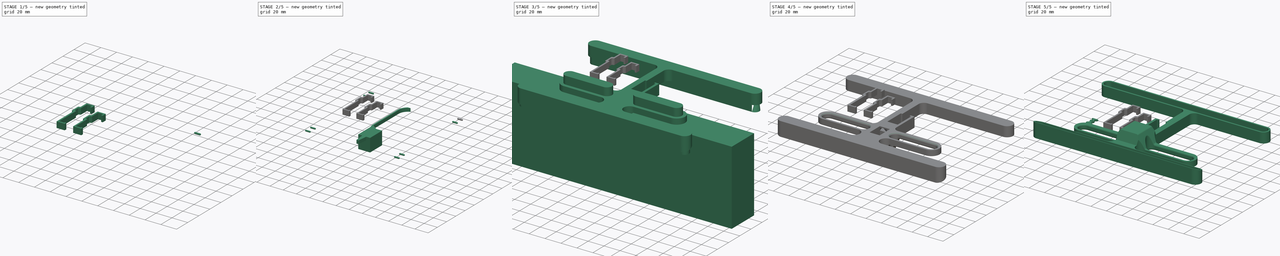
[diagram: build sequence overview — one tinted view per stage of 5, left to right]
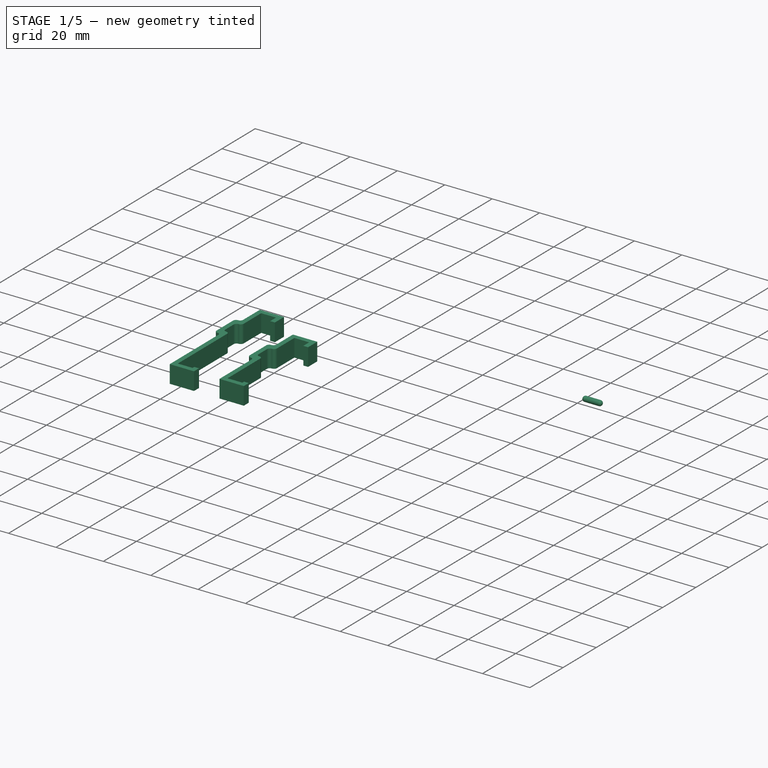
[diagram: stage 1 of 5 — iso view after this stage's code; geometry added in this stage tinted green]
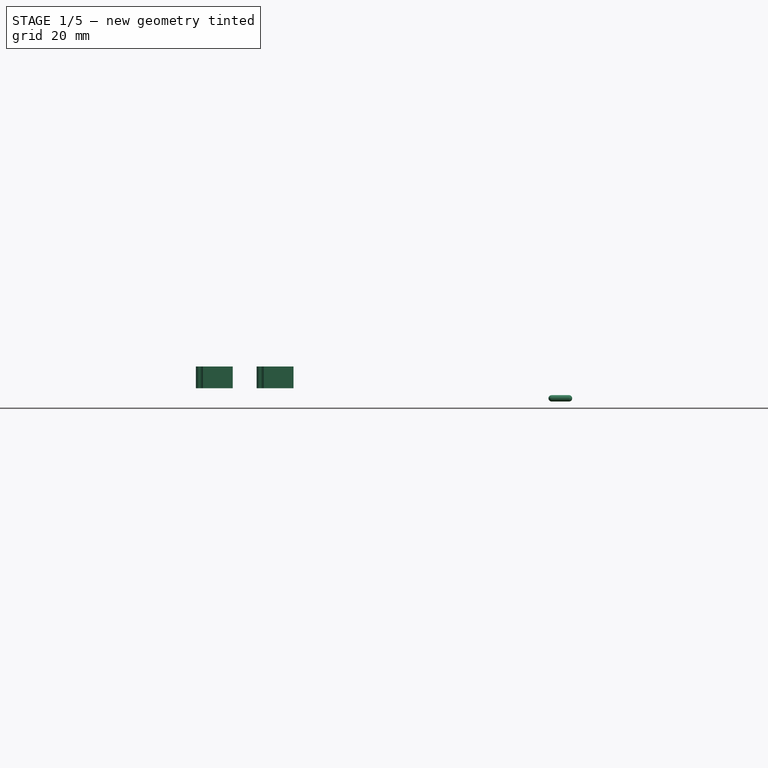
[diagram: stage 1 of 5 — front view after this stage's code; geometry added in this stage tinted green]
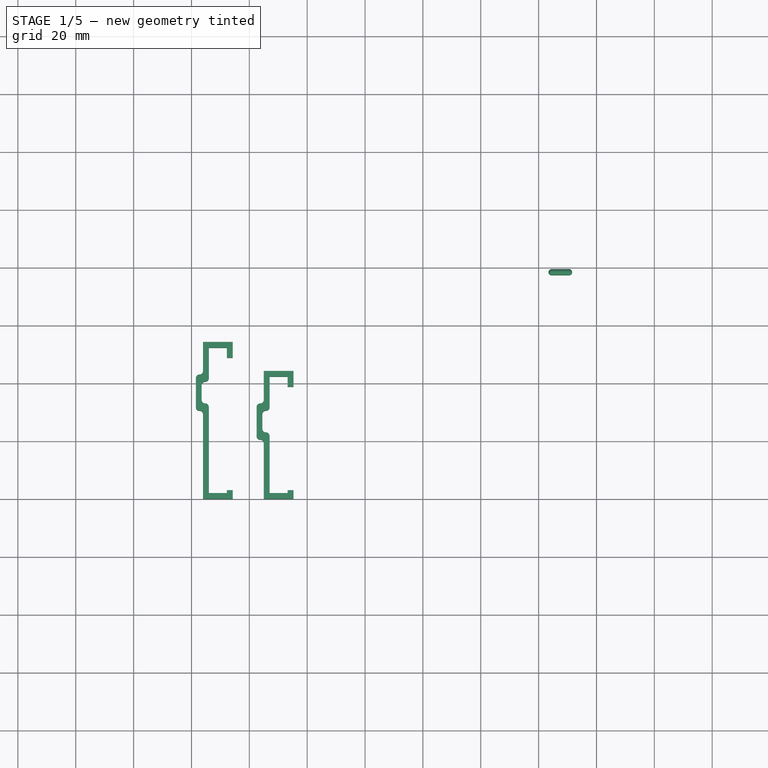
[diagram: stage 1 of 5 — top view after this stage's code; geometry added in this stage tinted green]
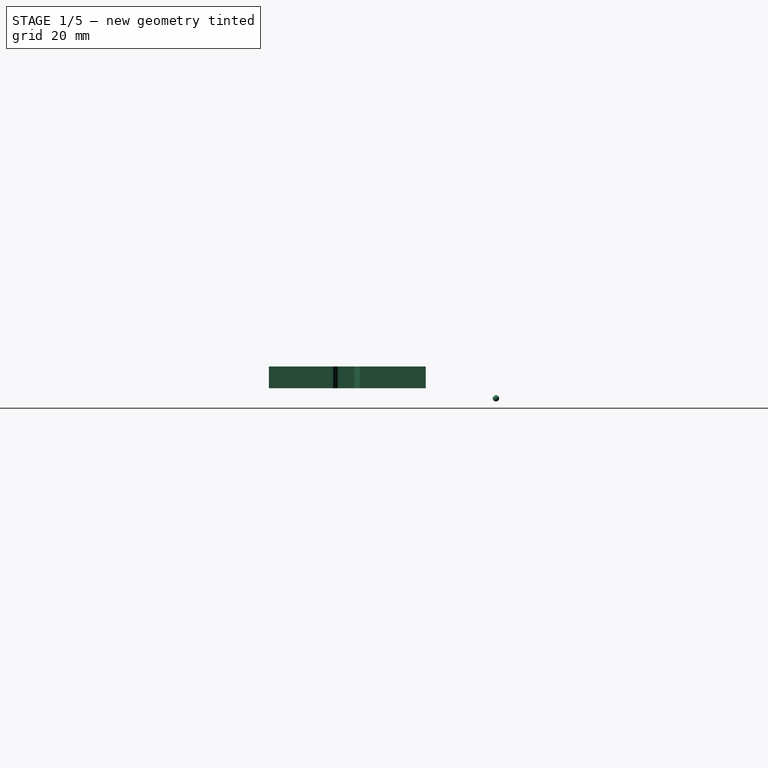
[diagram: stage 1 of 5 — right view after this stage's code; geometry added in this stage tinted green]
FCSTD DOCUMENT  (FreeCAD 0.19R)
Label: prusalight
License: All rights reserved
LicenseURL: http://en.wikipedia.org/wiki/All_rights_reserved
objects: Sketcher::SketchObject×14, Part::Extrusion×13, Part::FeaturePython×9, Part::Cut×7, Part::MultiFuse×6, Part::Sphere×4, Part::Cylinder×2, Part::MultiCommon×1, PartDesign::Body×1, Part::Fillet×1, App::DocumentObjectGroup×1
note: 58 computed .brp shape members not serialized (recipe doc carries the construction recipe); baked Part::Feature solids carry a one-line shape summary decoded from their .brp

FEATURE [Sketcher::SketchObject] Sketch  label="TopClampSketch"
  MapMode = 5
  Support = -> [XY_Plane]
  sketch-geometry (25):
    g0: LineSegment StartX=10.25 StartY=38.75 StartZ=0 EndX=10.25 EndY=44.25 EndZ=0
    g1: LineSegment StartX=10.25 StartY=44.25 StartZ=0 EndX=0 EndY=44.25 EndZ=0
    g2: LineSegment StartX=0 StartY=0 StartZ=0 EndX=10.25 EndY=0 EndZ=0
    g3: LineSegment StartX=10.25 StartY=0 StartZ=0 EndX=10.25 EndY=3 EndZ=0
    g4: LineSegment StartX=10.25 StartY=3 StartZ=0 EndX=8.25 EndY=3 EndZ=0
    g5: LineSegment StartX=8.25 StartY=3 StartZ=0 EndX=8.25 EndY=2 EndZ=0
    g6: LineSegment StartX=8.25 StartY=2 StartZ=0 EndX=2 EndY=2 EndZ=0
    g7: LineSegment StartX=2 StartY=42.25 StartZ=0 EndX=8.25 EndY=42.25 EndZ=0
    g8: LineSegment StartX=8.25 StartY=42.25 StartZ=0 EndX=8.25 EndY=38.75 EndZ=0
    g9: LineSegment StartX=8.25 StartY=38.75 StartZ=0 EndX=10.25 EndY=38.75 EndZ=0
    g10: GeomPoint X=0 Y=0 Z=0
    g11: LineSegment StartX=0 StartY=44.25 StartZ=0 EndX=0 EndY=34.25 EndZ=0
    g12: LineSegment StartX=-2.5 StartY=31.75 StartZ=0 EndX=-2.5 EndY=21.75 EndZ=0
    g13: LineSegment StartX=-0.5 StartY=29.25 StartZ=0 EndX=-0.5 EndY=24.25 EndZ=0
    g14: LineSegment StartX=0 StartY=19.25 StartZ=0 EndX=0 EndY=0 EndZ=0
    g15: LineSegment StartX=2 StartY=21.75 StartZ=0 EndX=2 EndY=2 EndZ=0
    g16: LineSegment StartX=2 StartY=42.25 StartZ=0 EndX=2 EndY=31.75 EndZ=0
    g17: ArcOfCircle CenterX=-1.25 CenterY=34.25 CenterZ=0 NormalX=0 NormalY=0 NormalZ=1 AngleXU=0 Radius=1.25 StartAngle=4.71239 EndAngle=6.28319
    g18: ArcOfCircle CenterX=-1.25 CenterY=31.75 CenterZ=0 NormalX=0 NormalY=0 NormalZ=1 AngleXU=0 Radius=1.25 StartAngle=1.5708 EndAngle=3.14159
    g19: ArcOfCircle CenterX=0.75 CenterY=29.25 CenterZ=0 NormalX=0 NormalY=0 NormalZ=1 AngleXU=0 Radius=1.25 StartAngle=1.5708 EndAngle=3.14159
    g20: ArcOfCircle CenterX=0.75 CenterY=31.75 CenterZ=0 NormalX=0 NormalY=0 NormalZ=1 AngleXU=0 Radius=1.25 StartAngle=4.71239 EndAngle=6.28319
    g21: ArcOfCircle CenterX=-1.25 CenterY=19.25 CenterZ=0 NormalX=0 NormalY=0 NormalZ=1 AngleXU=0 Radius=1.25 StartAngle=0 EndAngle=1.5708
    g22: ArcOfCircle CenterX=-1.25 CenterY=21.75 CenterZ=0 NormalX=0 NormalY=0 NormalZ=1 AngleXU=0 Radius=1.25 StartAngle=3.14159 EndAngle=4.71239
    g23: ArcOfCircle CenterX=0.75 CenterY=21.75 CenterZ=0 NormalX=0 NormalY=0 NormalZ=1 AngleXU=0 Radius=1.25 StartAngle=0 EndAngle=1.5708
    g24: ArcOfCircle CenterX=0.75 CenterY=24.25 CenterZ=0 NormalX=0 NormalY=0 NormalZ=1 AngleXU=0 Radius=1.25 StartAngle=3.14159 EndAngle=4.71239
  constraints (80):
    c: Vertical(g0)
    c: Coincident(g0,g1)
    c: Horizontal(g1)
    c: Horizontal(g2)
    c: Coincident(g2,g3)
    c: Vertical(g3)
    c: Coincident(g3,g4)
    c: Coincident(g4,g5)
    c: Vertical(g5)
    c: Coincident(g5,g6)
    c: Horizontal(g6)
    c: Horizontal(g7)
    c: Coincident(g7,g8)
    c: Vertical(g8)
    c: Coincident(g8,g9)
    c: Coincident(g9,g0)
    c: Vertical(g4,g8)
    c: DistanceY(g6,g7) = 40.25
    c: DistanceY(g7,g0) = 2
    c: Horizontal(g9)
    c: DistanceX(g9,g9) = 2
    c: Horizontal(g4)
    c: Vertical(g3,g0)
    c: DistanceY(g2,g5) = 2
    c: DistanceX(g1,g7) = 2
    c: DistanceY(g8,g8) = 3.5
    c: DistanceY(g5,g5) = 1
    c: DistanceX(g6,g6) = 6.25
    c: Coincident(g10,g-1)
    c: Vertical(g7,g6)
    c: Vertical(g2,g1)
    c: Coincident(g2,g10)
    c: Vertical(g11)
    c: Vertical(g12)
    c: Vertical(g13)
    c: Vertical(g14)
    c: Vertical(g15)
    c: Vertical(g16)
    c: Coincident(g18,g17)
    c: Vertical(g17,g17)
    c: Horizontal(g17,g17)
    c: Horizontal(g18,g18)
    c: Equal(g18,g17)
    c: Coincident(g17,g11)
    c: Coincident(g18,g12)
    c: Radius(g18) = 1.25
    c: Vertical(g18,g17)
    c: Coincident(g20,g19)
    c: Coincident(g19,g13)
    c: Horizontal(g13,g19)
    c: Vertical(g19,g19)
    c: Vertical(g19,g20)
    c: Horizontal(g20,g20)
    c: Coincident(g16,g20)
    c: DistanceY(g13,g13) = 5
    c: Equal(g20,g19)
    c: Equal(g19,g17)
    c: Coincident(g16,g7)
    c: Coincident(g11,g1)
    c: Horizontal(g20,g18)
    c: Coincident(g15,g6)
    c: Coincident(g14,g2)
    c: Coincident(g21,g14)
    c: Coincident(g22,g21)
    c: Coincident(g23,g15)
    c: Coincident(g24,g23)
    c: Horizontal(g23,g15)
    c: Horizontal(g24,g24)
    c: Vertical(g24,g23)
    c: Vertical(g23,g23)
    c: Horizontal(g14,g21)
    c: Horizontal(g22,g22)
    c: Vertical(g21,g21)
    c: Vertical(g22,g22)
    c: Coincident(g12,g22)
    c: Coincident(g24,g13)
    c: Equal(g22,g24)
    c: Equal(g24,g21)
    c: DistanceY(g11,g1) = 10
    c: Horizontal(g12,g15)
FEATURE [Part::Extrusion] Extrude  label="TopClamp"
  Base = -> Sketch
  Dir = (0,0,1)
  DirMode = 2
  FaceMakerClass = Part::FaceMakerBullseye
  LengthFwd = 7.5
  LengthRev = 0
  Solid = true
  Symmetric = false
FEATURE [Sketcher::SketchObject] Sketch001  label="SideClampSketch"
  MapMode = 5
  Support = -> [XY_Plane]
  expr: Constraints[77] = Sketch.Constraints[78]
  expr: Constraints[44] = Sketch.Constraints[45]
  expr: Constraints[26] = Sketch.Constraints[27]
  expr: Constraints[22] = Sketch.Constraints[23]
  expr: Constraints[25] = Sketch.Constraints[26]
  expr: Constraints[24] = Sketch.Constraints[25]
  expr: Constraints[23] = Sketch.Constraints[24]
  expr: Constraints[17] = Sketch.Constraints[18]
  expr: Constraints[19] = Sketch.Constraints[20]
  expr: Constraints[53] = Sketch.Constraints[54]
  sketch-geometry (25):
    g0: LineSegment StartX=10.25 StartY=48.75 StartZ=0 EndX=10.25 EndY=54.25 EndZ=0
    g1: LineSegment StartX=10.25 StartY=54.25 StartZ=0 EndX=0 EndY=54.25 EndZ=0
    g2: LineSegment StartX=0 StartY=0 StartZ=0 EndX=10.25 EndY=0 EndZ=0
    g3: LineSegment StartX=10.25 StartY=0 StartZ=0 EndX=10.25 EndY=3 EndZ=0
    g4: LineSegment StartX=10.25 StartY=3 StartZ=0 EndX=8.25 EndY=3 EndZ=0
    g5: LineSegment StartX=8.25 StartY=3 StartZ=0 EndX=8.25 EndY=2 EndZ=0
    g6: LineSegment StartX=8.25 StartY=2 StartZ=0 EndX=2 EndY=2 EndZ=0
    g7: LineSegment StartX=2 StartY=52.25 StartZ=0 EndX=8.25 EndY=52.25 EndZ=0
    g8: LineSegment StartX=8.25 StartY=52.25 StartZ=0 EndX=8.25 EndY=48.75 EndZ=0
    g9: LineSegment StartX=8.25 StartY=48.75 StartZ=0 EndX=10.25 EndY=48.75 EndZ=0
    g10: GeomPoint X=0 Y=0 Z=0
    g11: LineSegment StartX=0 StartY=54.25 StartZ=0 EndX=0 EndY=44.25 EndZ=0
    g12: LineSegment StartX=-2.5 StartY=41.75 StartZ=0 EndX=-2.5 EndY=31.75 EndZ=0
    g13: LineSegment StartX=-0.5 StartY=39.25 StartZ=0 EndX=-0.5 EndY=34.25 EndZ=0
    g14: LineSegment StartX=0 StartY=29.25 StartZ=0 EndX=0 EndY=0 EndZ=0
    g15: LineSegment StartX=2 StartY=31.75 StartZ=0 EndX=2 EndY=2 EndZ=0
    g16: LineSegment StartX=2 StartY=52.25 StartZ=0 EndX=2 EndY=41.75 EndZ=0
    g17: ArcOfCircle CenterX=-1.25 CenterY=44.25 CenterZ=0 NormalX=0 NormalY=0 NormalZ=1 AngleXU=0 Radius=1.25 StartAngle=4.71239 EndAngle=6.28319
    g18: ArcOfCircle CenterX=-1.25 CenterY=41.75 CenterZ=0 NormalX=0 NormalY=0 NormalZ=1 AngleXU=0 Radius=1.25 StartAngle=1.5708 EndAngle=3.14159
    g19: ArcOfCircle CenterX=0.75 CenterY=39.25 CenterZ=0 NormalX=0 NormalY=0 NormalZ=1 AngleXU=0 Radius=1.25 StartAngle=1.5708 EndAngle=3.14159
    g20: ArcOfCircle CenterX=0.75 CenterY=41.75 CenterZ=0 NormalX=0 NormalY=0 NormalZ=1 AngleXU=0 Radius=1.25 StartAngle=4.71239 EndAngle=6.28319
    g21: ArcOfCircle CenterX=-1.25 CenterY=29.25 CenterZ=0 NormalX=0 NormalY=0 NormalZ=1 AngleXU=0 Radius=1.25 StartAngle=0 EndAngle=1.5708
    g22: ArcOfCircle CenterX=-1.25 CenterY=31.75 CenterZ=0 NormalX=0 NormalY=0 NormalZ=1 AngleXU=0 Radius=1.25 StartAngle=3.14159 EndAngle=4.71239
    g23: ArcOfCircle CenterX=0.75 CenterY=31.75 CenterZ=0 NormalX=0 NormalY=0 NormalZ=1 AngleXU=0 Radius=1.25 StartAngle=0 EndAngle=1.5708
    g24: ArcOfCircle CenterX=0.75 CenterY=34.25 CenterZ=0 NormalX=0 NormalY=0 NormalZ=1 AngleXU=0 Radius=1.25 StartAngle=3.14159 EndAngle=4.71239
  constraints (80):
    c: Vertical(g0)
    c: Coincident(g0,g1)
    c: Horizontal(g1)
    c: Horizontal(g2)
    c: Coincident(g2,g3)
    c: Vertical(g3)
    c: Coincident(g3,g4)
    c: Coincident(g4,g5)
    c: Vertical(g5)
    c: Coincident(g5,g6)
    c: Horizontal(g6)
    c: Horizontal(g7)
    c: Coincident(g7,g8)
    c: Vertical(g8)
    c: Coincident(g8,g9)
    c: Coincident(g9,g0)
    c: Vertical(g4,g8)
    c: DistanceY(g7,g0) = 2
    c: Horizontal(g9)
    c: DistanceX(g9,g9) = 2
    c: Horizontal(g4)
    c: Vertical(g3,g0)
    c: DistanceY(g2,g5) = 2
    c: DistanceX(g1,g7) = 2
    c: DistanceY(g8,g8) = 3.5
    c: DistanceY(g5,g5) = 1
    c: DistanceX(g6,g6) = 6.25
    c: Coincident(g10,g-1)
    c: Vertical(g7,g6)
    c: Vertical(g2,g1)
    c: Coincident(g2,g10)
    c: Vertical(g11)
    c: Vertical(g12)
    c: Vertical(g13)
    c: Vertical(g14)
    c: Vertical(g15)
    c: Vertical(g16)
    c: Coincident(g18,g17)
    c: Vertical(g17,g17)
    c: Horizontal(g17,g17)
    c: Horizontal(g18,g18)
    c: Equal(g18,g17)
    c: Coincident(g17,g11)
    c: Coincident(g18,g12)
    c: Radius(g18) = 1.25
    c: Vertical(g18,g17)
    c: Coincident(g20,g19)
    c: Coincident(g19,g13)
    c: Horizontal(g13,g19)
    c: Vertical(g19,g19)
    c: Vertical(g19,g20)
    c: Horizontal(g20,g20)
    c: Coincident(g16,g20)
    c: DistanceY(g13,g13) = 5
    c: Equal(g20,g19)
    c: Equal(g19,g17)
    c: Coincident(g16,g7)
    c: Coincident(g11,g1)
    c: Horizontal(g20,g18)
    c: Coincident(g15,g6)
    c: Coincident(g14,g2)
    c: Coincident(g21,g14)
    c: Coincident(g22,g21)
    c: Coincident(g23,g15)
    c: Coincident(g24,g23)
    c: Horizontal(g23,g15)
    c: Horizontal(g24,g24)
    c: Vertical(g24,g23)
    c: Vertical(g23,g23)
    c: Horizontal(g14,g21)
    c: Horizontal(g22,g22)
    c: Vertical(g21,g21)
    c: Vertical(g22,g22)
    c: Coincident(g12,g22)
    c: Coincident(g24,g13)
    c: Equal(g22,g24)
    c: Equal(g24,g21)
    c: DistanceY(g11,g1) = 10
    c: Horizontal(g12,g15)
    c: DistanceY(g6,g7) = 50.25
FEATURE [Part::Extrusion] Extrude001  label="SideClamp"
  Base = -> Sketch001
  Dir = (0,0,1)
  DirMode = 2
  FaceMakerClass = Part::FaceMakerBullseye
  LengthFwd = 7.5
  LengthRev = 0
  Placement = pos=(-13,0,0) rot=(0,0,1;0rad)
  Solid = true
  Symmetric = false
FEATURE [Part::Cylinder] Cylinder
  Angle = 360
  AttacherType = Attacher::AttachEngine3D
  Height = 6
  Placement = pos=(0,0,-3) rot=(0,0,1;0rad)
  Radius = 1.1
FEATURE [Part::Sphere] Sphere
  Angle1 = -90
  Angle2 = 90
  Angle3 = 360
  AttacherType = Attacher::AttachEngine3D
  Placement = pos=(0,0,3) rot=(0,0,1;0rad)
  Radius = 1.1
FEATURE [Part::Sphere] Sphere001
  Angle1 = -90
  Angle2 = 90
  Angle3 = 360
  AttacherType = Attacher::AttachEngine3D
  Placement = pos=(0,0,-3) rot=(0,0,1;0rad)
  Radius = 1.1
FEATURE [Part::MultiFuse] Fusion001  label="LockPinHole"
  Placement = pos=(67.5,-38.5,-3.5) rot=(0,-1,0;1.5708rad)
  Shapes = -> [Cylinder,Sphere,Sphere001]
  expr: .Placement.Base.x = 135 / 2
FEATURE [Part::FeaturePython] Clone002  label="LockPinHole002"  # Draft clone (typed FeaturePython)
  AttacherType = Attacher::AttachEngine3D
  Fuse = false
  Objects = -> [Fusion001]
  Placement = pos=(67.5,98.5,-3.5) rot=(0,-1,0;1.5708rad)
  Scale = (1,1,1)
FEATURE [Part::FeaturePython] Clone007  label="PrusaLightTopFrameClamp"  # Draft clone (typed FeaturePython)
  AttacherType = Attacher::AttachEngine3D
  Fuse = false
  Objects = -> [Extrude]
  Placement = pos=(-35,20,0) rot=(0,0,1;0rad)
  Scale = (1,1,1)
FEATURE [Part::FeaturePython] Clone008  label="PrusaLightSideSideFrameClamp"  # Draft clone (typed FeaturePython)
  AttacherType = Attacher::AttachEngine3D
  Fuse = false
  Objects = -> [Extrude001]
  Placement = pos=(-56,20,0) rot=(0,0,1;0rad)
  Scale = (1,1,1)
FEATURE [App::DocumentObjectGroup] Group  label="PrintPlate"
  Group = -> [Clone005,Clone006,Clone007,Clone008]
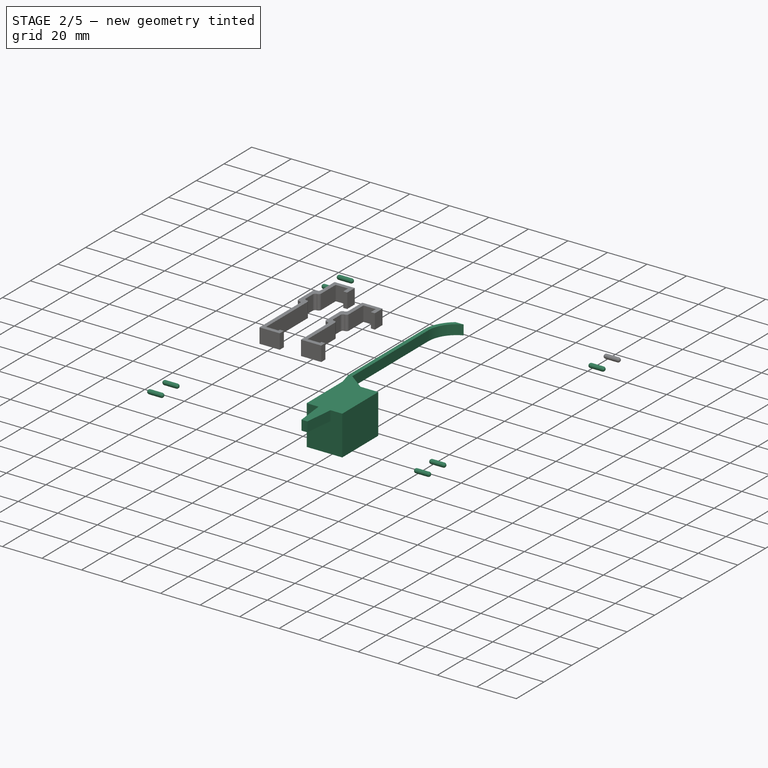
[diagram: stage 2 of 5 — iso view after this stage's code; geometry added in this stage tinted green]
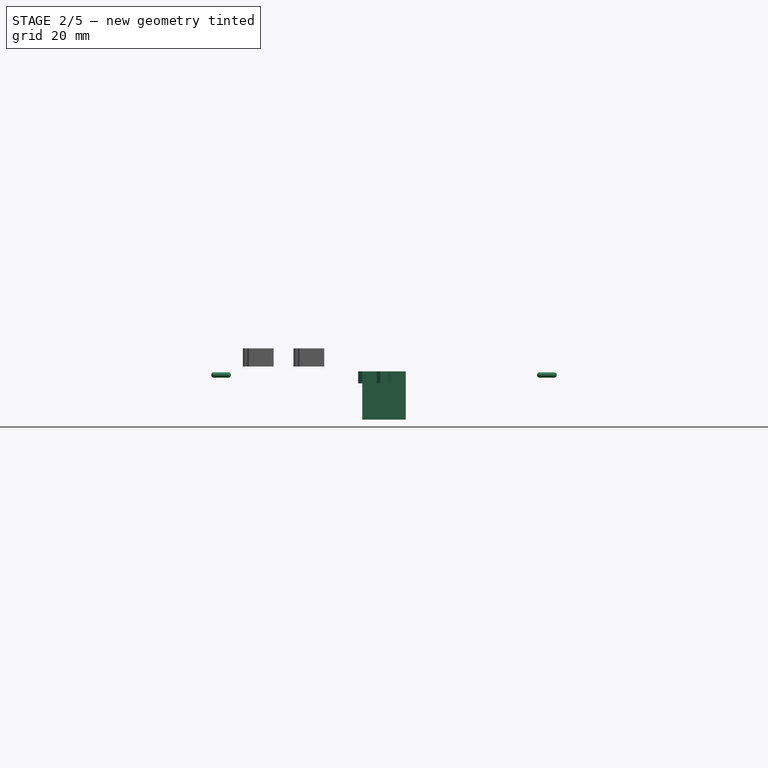
[diagram: stage 2 of 5 — front view after this stage's code; geometry added in this stage tinted green]
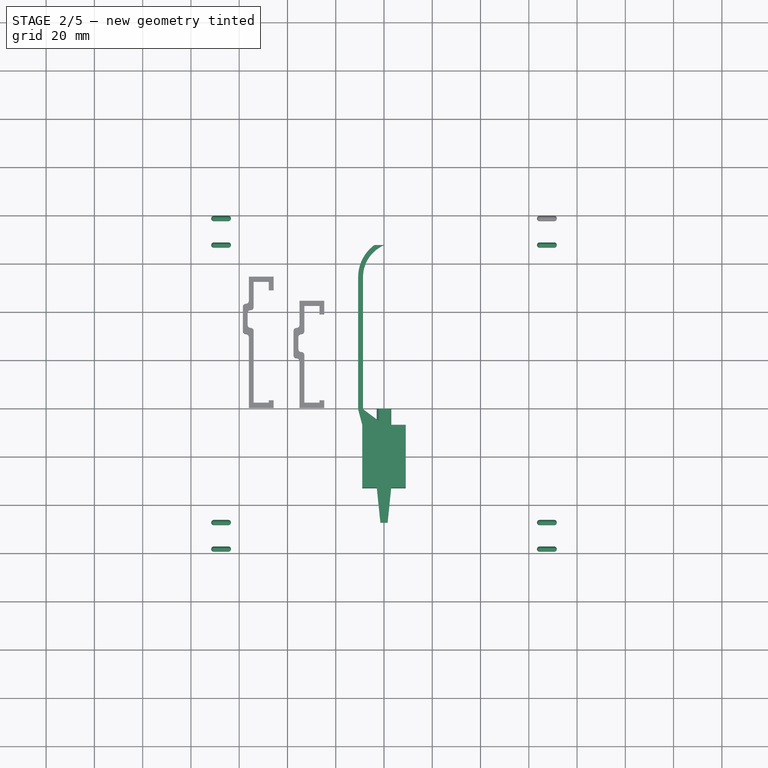
[diagram: stage 2 of 5 — top view after this stage's code; geometry added in this stage tinted green]
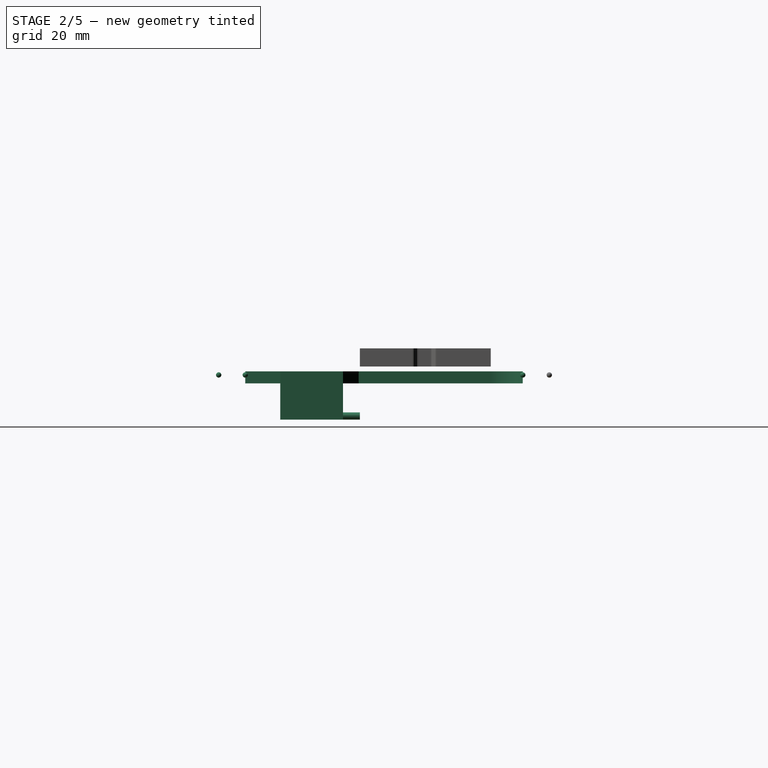
[diagram: stage 2 of 5 — right view after this stage's code; geometry added in this stage tinted green]
FEATURE [Part::Extrusion] Extrude009
  Base = -> Sketch008
  Dir = (0,0,1)
  DirMode = 2
  FaceMakerClass = Part::FaceMakerBullseye
  LengthFwd = 0
  LengthRev = 20
  Placement = pos=(0,0,-2) rot=(0,0,1;0rad)
  Solid = true
  Symmetric = false
FEATURE [Sketcher::SketchObject] Sketch011  label="InnerCableCutoutSketch"
  ExternalGeometry = -> [Sketch002]
  MapMode = 5
  Support = -> [XY_Plane]
  sketch-geometry (15):
    g0: LineSegment StartX=-10.7 StartY=74.2762 StartZ=0 EndX=-10.7 EndY=19.5 EndZ=0
    g1: LineSegment StartX=-8.7 StartY=74.2762 StartZ=0 EndX=-8.7 EndY=19.5 EndZ=0
    g2: LineSegment StartX=9 StartY=13 StartZ=0 EndX=9 EndY=-13 EndZ=0
    g3: LineSegment StartX=-1.5 StartY=-27.5 StartZ=0 EndX=1.5 EndY=-27.5 EndZ=0
    g4: LineSegment StartX=-10.7 StartY=19.5 StartZ=0 EndX=-9 EndY=13 EndZ=0
    g5: LineSegment StartX=-9 StartY=13 StartZ=0 EndX=-9 EndY=-13 EndZ=0
    g6: LineSegment StartX=-8.7 StartY=19.5 StartZ=0 EndX=0 EndY=13 EndZ=0
    g7: LineSegment StartX=0 StartY=13 StartZ=0 EndX=9 EndY=13 EndZ=0
    g8: LineSegment StartX=-9 StartY=-13 StartZ=0 EndX=-3 EndY=-13 EndZ=0
    g9: LineSegment StartX=-3 StartY=-13 StartZ=0 EndX=-1.5 EndY=-27.5 EndZ=0
    g10: LineSegment StartX=1.5 StartY=-27.5 StartZ=0 EndX=3 EndY=-13 EndZ=0
    g11: LineSegment StartX=3 StartY=-13 StartZ=0 EndX=9 EndY=-13 EndZ=0
    g12: ArcOfCircle CenterX=5.7 CenterY=74.2762 CenterZ=0 NormalX=0 NormalY=0 NormalZ=1 AngleXU=0 Radius=16.4 StartAngle=2.20367 EndAngle=3.14159
    g13: ArcOfCircle CenterX=5.7 CenterY=74.2762 CenterZ=0 NormalX=0 NormalY=0 NormalZ=1 AngleXU=0 Radius=14.4 StartAngle=1.97777 EndAngle=3.14159
    g14: LineSegment StartX=9e-16 StartY=87.5 StartZ=0 EndX=-4 EndY=87.5 EndZ=0
  constraints (38):
    c: Vertical(g0)
    c: Vertical(g1)
    c: DistanceX(g1,g-4) = 2
    c: DistanceX(g0,g1) = 2
    c: DistanceY(g1,g-4) = 4
    c: Coincident(g2,g-6)
    c: Coincident(g2,g-6)
    c: PointOnObject(g3,g-7)
    c: DistanceX(g3,g3) = 3
    c: Symmetric(g3,g3,g-2)
    c: Horizontal(g0,g1)
    c: Coincident(g4,g0)
    c: Coincident(g4,g-5)
    c: Coincident(g5,g4)
    c: Coincident(g6,g1)
    c: PointOnObject(g6,g-2)
    c: Coincident(g7,g6)
    c: Coincident(g7,g2)
    c: Horizontal(g7)
    c: Coincident(g5,g-5)
    c: Coincident(g5,g8)
    c: Horizontal(g8)
    c: Coincident(g8,g9)
    c: Coincident(g9,g3)
    c: Coincident(g3,g10)
    c: Coincident(g10,g11)
    c: Coincident(g11,g2)
    c: Symmetric(g8,g10,g-2)
    c: DistanceX(g8,g10) = 6
    c: PointOnObject(g12,g-3)
    c: Tangent(g0,g12) = -1.5708
    c: PointOnObject(g13,g-3)
    c: Tangent(g1,g13) = -1.5708
    c: PointOnObject(g13,g-2)
    c: Coincident(g14,g13)
    c: Coincident(g14,g12)
    c: DistanceX(g14,g14) = 4
    c: Coincident(g12,g13)
FEATURE [Part::Extrusion] Extrude010  label="InnerCableCutout"
  Base = -> Sketch011
  Dir = (0,0,1)
  DirMode = 2
  FaceMakerClass = Part::FaceMakerBullseye
  LengthFwd = 0
  LengthRev = 5
  Placement = pos=(0,0,-2) rot=(0,0,1;0rad)
  Solid = true
  Symmetric = false
FEATURE [Sketcher::SketchObject] Sketch012  label="MainCableOutletSketch"
  ExternalGeometry = -> [Sketch007]
  MapMode = 5
  Placement = pos=(0,0,0) rot=(1,0,0;1.5708rad)
  Support = -> [XZ_Plane]
  sketch-geometry (4):
    g0: ArcOfCircle CenterX=-1.5 CenterY=-20.5 CenterZ=0 NormalX=0 NormalY=0 NormalZ=1 AngleXU=0 Radius=1.5 StartAngle=1.5708 EndAngle=4.71239
    g1: ArcOfCircle CenterX=1.5 CenterY=-20.5 CenterZ=0 NormalX=0 NormalY=0 NormalZ=1 AngleXU=0 Radius=1.5 StartAngle=4.71239 EndAngle=7.85398
    g2: LineSegment StartX=-1.5 StartY=-22 StartZ=0 EndX=1.5 EndY=-22 EndZ=0
    g3: LineSegment StartX=-1.5 StartY=-19 StartZ=0 EndX=1.5 EndY=-19 EndZ=0
  constraints (9):
    c: Tangent(g0,g3) = 1.5708
    c: Tangent(g0,g2) = -1.5708
    c: Tangent(g2,g1) = -1.5708
    c: Tangent(g3,g1) = 1.5708
    c: Horizontal(g2)
    c: DistanceY(g1,g1) = 3
    c: DistanceX(g0,g1) = 3
    c: Symmetric(g0,g1,g-2)
    c: DistanceY(g-3,g1) = 2
FEATURE [Part::Extrusion] Extrude011
  Base = -> Sketch012
  Dir = (0,-1,-2e-16)
  DirMode = 2
  FaceMakerClass = Part::FaceMakerBullseye
  LengthFwd = 0
  LengthRev = 20
  Solid = true
  Symmetric = false
FEATURE [Part::FeaturePython] Clone  label="Fusion002"  # Draft clone (typed FeaturePython)
  AttacherType = Attacher::AttachEngine3D
  Fuse = false
  Objects = -> [Fusion001]
  Placement = pos=(67.5,-27.5,-3.5) rot=(0,-1,0;1.5708rad)
  Scale = (1,1,1)
FEATURE [Part::FeaturePython] Clone001  label="LockPinHole001"  # Draft clone (typed FeaturePython)
  AttacherType = Attacher::AttachEngine3D
  Fuse = false
  Objects = -> [Fusion001]
  Placement = pos=(67.5,87.5,-3.5) rot=(0,-1,0;1.5708rad)
  Scale = (1,1,1)
FEATURE [Part::MultiFuse] Fusion003  label="Fusion004"
  Shapes = -> [Fusion001,Clone,Clone001,Clone002]
FEATURE [Part::FeaturePython] Clone003  label="Fusion005"  # Draft clone (typed FeaturePython)
  AttacherType = Attacher::AttachEngine3D
  Fuse = false
  Objects = -> [Fusion003]
  Placement = pos=(-135,0,0) rot=(0,0,1;0rad)
  Scale = (1,1,1)
FEATURE [Part::MultiFuse] Fusion004  label="LockPinHoles"
  Shapes = -> [Fusion003,Clone003]
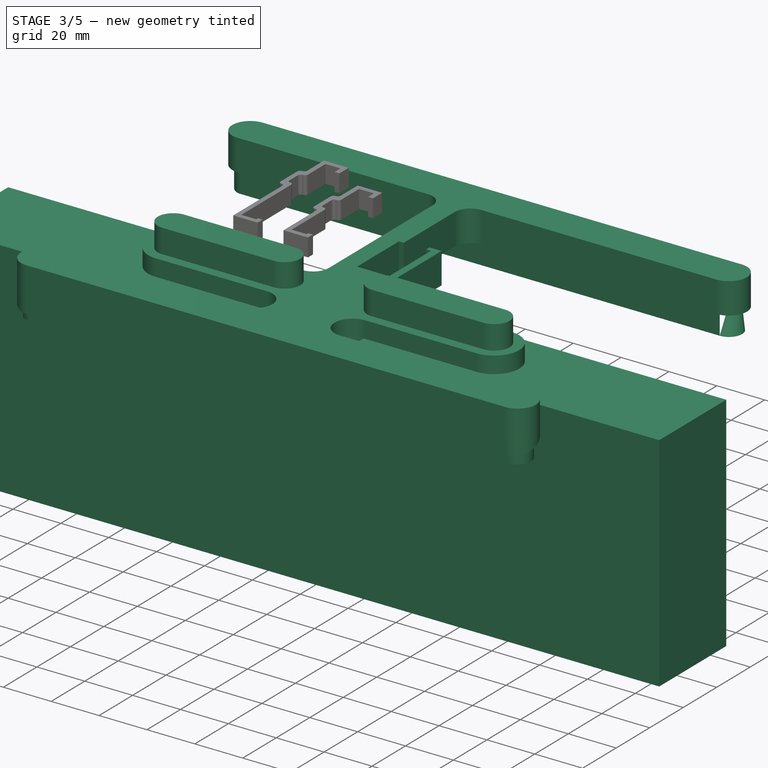
[diagram: stage 3 of 5 — iso view after this stage's code; geometry added in this stage tinted green]
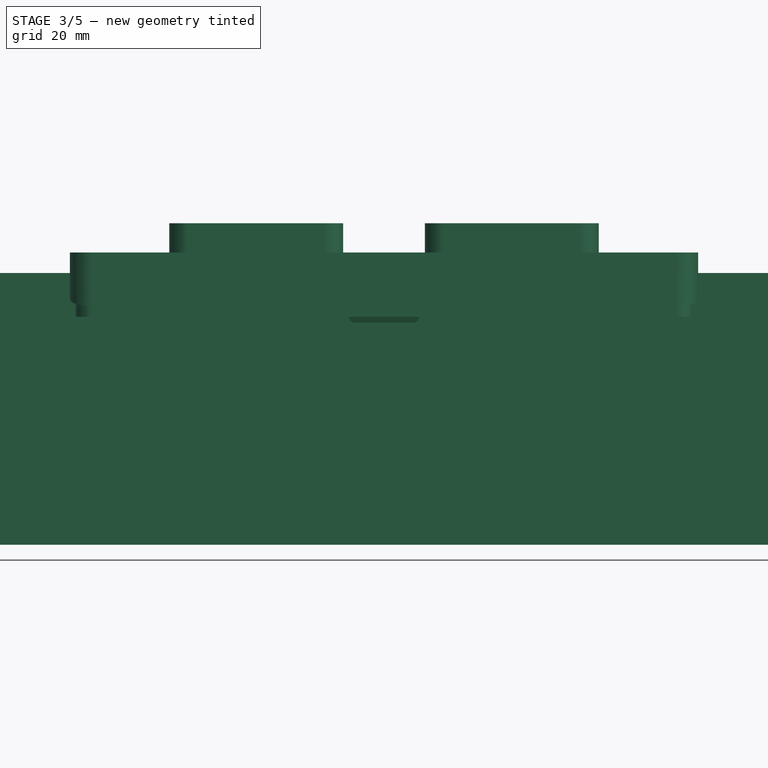
[diagram: stage 3 of 5 — front view after this stage's code; geometry added in this stage tinted green]
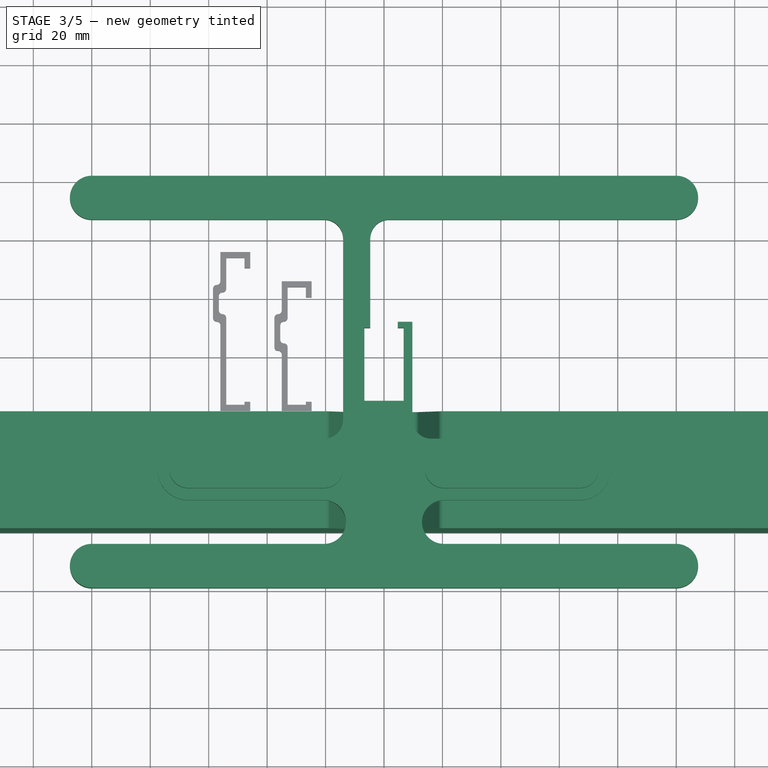
[diagram: stage 3 of 5 — top view after this stage's code; geometry added in this stage tinted green]
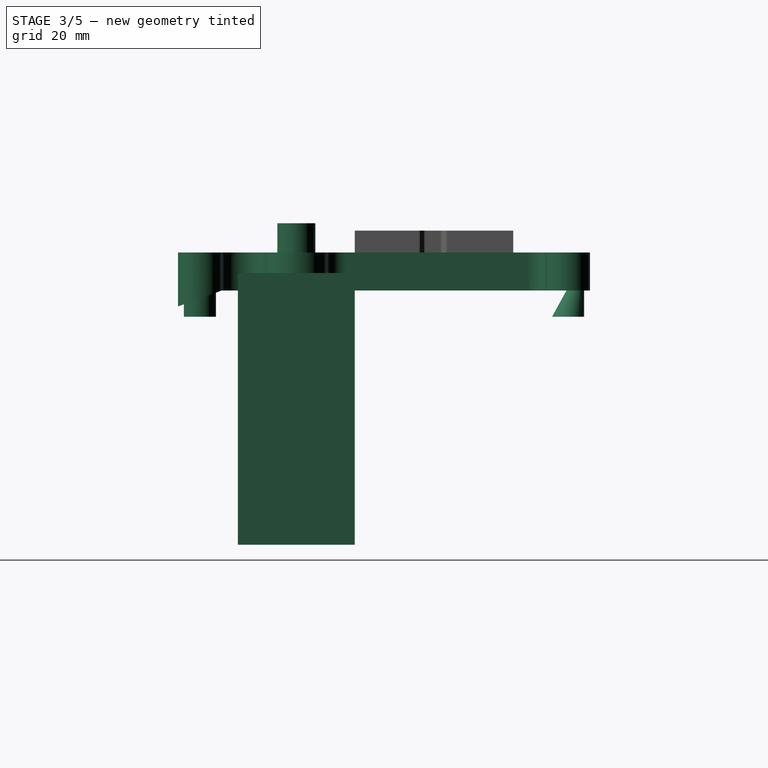
[diagram: stage 3 of 5 — right view after this stage's code; geometry added in this stage tinted green]
FEATURE [Sketcher::SketchObject] Sketch002  label="TopMaster"
  MapMode = 5
  Support = -> [XY_Plane]
  sketch-geometry (63):
    g0: ArcOfCircle CenterX=-67 CenterY=2e-16 CenterZ=0 NormalX=0 NormalY=0 NormalZ=1 AngleXU=0 Radius=6.5 StartAngle=1.5708 EndAngle=4.71239
    g1: ArcOfCircle CenterX=-20.5 CenterY=0 CenterZ=0 NormalX=0 NormalY=0 NormalZ=1 AngleXU=0 Radius=6.5 StartAngle=4.71239 EndAngle=7.85398
    g2: LineSegment StartX=-67 StartY=10.5 StartZ=0 EndX=-20.5 EndY=10.5 EndZ=0
    g3: LineSegment StartX=-67 StartY=-6.5 StartZ=0 EndX=-20.5 EndY=-6.5 EndZ=0
    g4: LineSegment StartX=-67 StartY=6.5 StartZ=0 EndX=-20.5 EndY=6.5 EndZ=0
    g5: ArcOfCircle CenterX=-67 CenterY=2e-16 CenterZ=0 NormalX=0 NormalY=0 NormalZ=1 AngleXU=0 Radius=10.5 StartAngle=1.5708 EndAngle=4.71239
    g6: LineSegment StartX=-14 StartY=17 StartZ=0 EndX=-14 EndY=79 EndZ=0
    g7: LineSegment StartX=-4.7 StartY=50.5 StartZ=0 EndX=-4.7 EndY=48.5 EndZ=0
    g8: LineSegment StartX=-4.7 StartY=48.5 StartZ=0 EndX=-6.7 EndY=48.5 EndZ=0
    g9: LineSegment StartX=-6.7 StartY=48.5 StartZ=0 EndX=-6.7 EndY=23.5 EndZ=0
    g10: LineSegment StartX=-6.7 StartY=23.5 StartZ=0 EndX=6.7 EndY=23.5 EndZ=0
    g11: LineSegment StartX=6.7 StartY=23.5 StartZ=0 EndX=6.7 EndY=48.5 EndZ=0
    g12: LineSegment StartX=6.7 StartY=48.5 StartZ=0 EndX=4.7 EndY=48.5 EndZ=0
    g13: LineSegment StartX=4.7 StartY=48.5 StartZ=0 EndX=4.7 EndY=50.5 EndZ=0
    g14: LineSegment StartX=4.7 StartY=50.5 StartZ=0 EndX=9.7 EndY=50.5 EndZ=0
    g15: LineSegment StartX=9.7 StartY=50.5 StartZ=0 EndX=9.7 EndY=17 EndZ=0
    g16: LineSegment StartX=-6.5 StartY=10.5 StartZ=0 EndX=6.5 EndY=10.5 EndZ=0
    g17: LineSegment StartX=6.5 StartY=10.5 StartZ=0 EndX=6.5 EndY=-10.5 EndZ=0
    g18: LineSegment StartX=6.5 StartY=-10.5 StartZ=0 EndX=-6.5 EndY=-10.5 EndZ=0
    g19: LineSegment StartX=-6.5 StartY=-10.5 StartZ=0 EndX=-6.5 EndY=10.5 EndZ=0
    g20: LineSegment StartX=-6.5 StartY=9.5 StartZ=0 EndX=6.5 EndY=9.5 EndZ=0
    g21: LineSegment StartX=6.5 StartY=9.5 StartZ=0 EndX=6.5 EndY=-9.5 EndZ=0
    g22: LineSegment StartX=6.5 StartY=-9.5 StartZ=0 EndX=-6.5 EndY=-9.5 EndZ=0
    g23: LineSegment StartX=-6.5 StartY=-9.5 StartZ=0 EndX=-6.5 EndY=9.5 EndZ=0
    g24: ArcOfCircle CenterX=-20.5 CenterY=-18 CenterZ=0 NormalX=0 NormalY=0 NormalZ=1 AngleXU=0 Radius=7.5 StartAngle=4.71239 EndAngle=7.85398
    g25: LineSegment StartX=-20.5 StartY=-25.5 StartZ=0 EndX=-100 EndY=-25.5 EndZ=0
    g26: ArcOfCircle CenterX=-100 CenterY=-33 CenterZ=0 NormalX=0 NormalY=0 NormalZ=1 AngleXU=0 Radius=7.5 StartAngle=1.5708 EndAngle=4.71239
    g27: ArcOfCircle CenterX=-100 CenterY=-33 CenterZ=0 NormalX=0 NormalY=0 NormalZ=1 AngleXU=0 Radius=5.5 StartAngle=1.5708 EndAngle=4.71239
    g28: LineSegment StartX=-67 StartY=-10.5 StartZ=0 EndX=-20.5 EndY=-10.5 EndZ=0
    g29: ArcOfCircle CenterX=-100 CenterY=93 CenterZ=0 NormalX=0 NormalY=0 NormalZ=1 AngleXU=0 Radius=7.5 StartAngle=1.5708 EndAngle=4.71239
    g30: ArcOfCircle CenterX=-100 CenterY=93 CenterZ=0 NormalX=0 NormalY=0 NormalZ=1 AngleXU=0 Radius=5.5 StartAngle=1.5708 EndAngle=4.71239
    g31: GeomPoint X=-100 Y=100.5 Z=0
    g32: LineSegment StartX=-100 StartY=100.5 StartZ=0 EndX=100 EndY=100.5 EndZ=0
    g33: LineSegment StartX=-100 StartY=98.5 StartZ=0 EndX=100 EndY=98.5 EndZ=0
    g34: LineSegment StartX=-100 StartY=87.5 StartZ=0 EndX=100 EndY=87.5 EndZ=0
    g35: ArcOfCircle CenterX=100 CenterY=93 CenterZ=0 NormalX=0 NormalY=0 NormalZ=1 AngleXU=0 Radius=5.5 StartAngle=4.71239 EndAngle=7.85398
    g36: ArcOfCircle CenterX=100 CenterY=93 CenterZ=0 NormalX=0 NormalY=0 NormalZ=1 AngleXU=0 Radius=7.5 StartAngle=4.71239 EndAngle=7.85398
    g37: ArcOfCircle CenterX=-20.5 CenterY=17 CenterZ=0 NormalX=0 NormalY=0 NormalZ=1 AngleXU=0 Radius=6.5 StartAngle=4.71239 EndAngle=6.28319
    g38: LineSegment StartX=-4.7 StartY=50.5 StartZ=0 EndX=-4.7 EndY=79 EndZ=0
    g39: ArcOfCircle CenterX=-20.5 CenterY=79 CenterZ=0 NormalX=0 NormalY=0 NormalZ=1 AngleXU=0 Radius=6.5 StartAngle=5e-16 EndAngle=1.5708
    g40: ArcOfCircle CenterX=1.8 CenterY=79 CenterZ=0 NormalX=0 NormalY=0 NormalZ=1 AngleXU=0 Radius=6.5 StartAngle=1.5708 EndAngle=3.14159
    g41: LineSegment StartX=-100 StartY=85.5 StartZ=0 EndX=-20.5 EndY=85.5 EndZ=0
    g42: LineSegment StartX=100 StartY=85.5 StartZ=0 EndX=1.8 EndY=85.5 EndZ=0
    g43: LineSegment StartX=-20.5 StartY=85.5 StartZ=0 EndX=1.8 EndY=85.5 EndZ=0
    g44: ArcOfCircle CenterX=16.2 CenterY=17 CenterZ=0 NormalX=0 NormalY=0 NormalZ=1 AngleXU=0 Radius=6.5 StartAngle=3.14159 EndAngle=4.71239
    g45: ArcOfCircle CenterX=20.5 CenterY=0 CenterZ=0 NormalX=0 NormalY=0 NormalZ=1 AngleXU=0 Radius=6.5 StartAngle=1.5708 EndAngle=4.71239
    g46: ArcOfCircle CenterX=67 CenterY=2e-16 CenterZ=0 NormalX=0 NormalY=0 NormalZ=1 AngleXU=0 Radius=6.5 StartAngle=4.71239 EndAngle=7.85398
    g47: LineSegment StartX=20.5 StartY=6.5 StartZ=0 EndX=67 EndY=6.5 EndZ=0
    g48: LineSegment StartX=67 StartY=-6.5 StartZ=0 EndX=20.5 EndY=-6.5 EndZ=0
    g49: ArcOfCircle CenterX=67 CenterY=2e-16 CenterZ=0 NormalX=0 NormalY=0 NormalZ=1 AngleXU=0 Radius=10.5 StartAngle=4.71239 EndAngle=7.85398
    g50: ArcOfCircle CenterX=20.5 CenterY=-18 CenterZ=0 NormalX=0 NormalY=0 NormalZ=1 AngleXU=0 Radius=7.5 StartAngle=1.5708 EndAngle=4.71239
    g51: LineSegment StartX=16.2 StartY=10.5 StartZ=0 EndX=67 EndY=10.5 EndZ=0
    g52: LineSegment StartX=67 StartY=-10.5 StartZ=0 EndX=20.5 EndY=-10.5 EndZ=0
    g53: ArcOfCircle CenterX=100 CenterY=-33 CenterZ=0 NormalX=0 NormalY=0 NormalZ=1 AngleXU=0 Radius=5.5 StartAngle=4.71239 EndAngle=7.85398
    g54: ArcOfCircle CenterX=100 CenterY=-33 CenterZ=0 NormalX=0 NormalY=0 NormalZ=1 AngleXU=0 Radius=7.5 StartAngle=4.71239 EndAngle=7.85398
    g55: LineSegment StartX=20.5 StartY=-25.5 StartZ=0 EndX=100 EndY=-25.5 EndZ=0
    g56: LineSegment StartX=100 StartY=-27.5 StartZ=0 EndX=-100 EndY=-27.5 EndZ=0
    g57: LineSegment StartX=-100 StartY=-38.5 StartZ=0 EndX=100 EndY=-38.5 EndZ=0
    g58: LineSegment StartX=100 StartY=-40.5 StartZ=0 EndX=-100 EndY=-40.5 EndZ=0
    g59: LineSegment StartX=-9 StartY=13 StartZ=0 EndX=9 EndY=13 EndZ=0
    g60: LineSegment StartX=9 StartY=13 StartZ=0 EndX=9 EndY=-13 EndZ=0
    g61: LineSegment StartX=9 StartY=-13 StartZ=0 EndX=-9 EndY=-13 EndZ=0
    g62: LineSegment StartX=-9 StartY=-13 StartZ=0 EndX=-9 EndY=13 EndZ=0
  constraints (191):
    c: Vertical(g0,g0)
    c: Vertical(g0,g0)
    c: Radius(g0) = 6.5
    c: Vertical(g1,g1)
    c: Vertical(g1,g1)
    c: Equal(g1,g0)
    c: Horizontal(g2)
    c: DistanceY(g0,g2) = 4
    c: Coincident(g3,g0)
    c: Coincident(g3,g1)
    c: Horizontal(g3)
    c: Coincident(g4,g0)
    c: Coincident(g4,g1)
    c: Coincident(g5,g0)
    c: Coincident(g5,g2)
    c: Vertical(g2,g0)
    c: Vertical(g6)
    c: Vertical(g7)
    c: Coincident(g7,g8)
    c: Horizontal(g8)
    c: Coincident(g8,g9)
    c: Vertical(g9)
    c: Coincident(g9,g10)
    c: Horizontal(g10)
    c: Coincident(g10,g11)
    c: Vertical(g11)
    c: Coincident(g11,g12)
    c: Coincident(g12,g13)
    c: Coincident(g13,g14)
    c: Coincident(g14,g15)
    c: DistanceX(g8,g8) = 2
    c: Symmetric(g7,g12,g-2)
    c: Symmetric(g7,g13,g-2)
    c: Symmetric(g8,g11,g-2)
    c: DistanceX(g0,g1) = 46.5
    c: Coincident(g16,g17)
    c: Coincident(g17,g18)
    c: Coincident(g18,g19)
    c: Coincident(g19,g16)
    c: Horizontal(g16)
    c: Horizontal(g18)
    c: Vertical(g17)
    c: Vertical(g19)
    c: DistanceX(g16,g16) = 13
    c: DistanceY(g17,g17) = 21
    c: Coincident(g20,g21)
    c: Coincident(g21,g22)
    c: Coincident(g22,g23)
    c: Coincident(g23,g20)
    c: Horizontal(g20)
    c: Horizontal(g22)
    c: Vertical(g21)
    c: Vertical(g23)
    c: DistanceY(g21,g21) = 19
    c: DistanceX(g22,g22) = 13
    c: Symmetric(g18,g16,g-1)
    c: Symmetric(g20,g22,g-1)
    c: Vertical(g24,g24)
    c: Coincident(g25,g24)
    c: Horizontal(g25)
    c: Coincident(g26,g25)
    c: Coincident(g27,g26)
    c: Vertical(g27,g26)
    c: Vertical(g26,g27)
    c: Vertical(g25,g26)
    c: Vertical(g25,g26)
    c: Equal(g26,g24)
    c: Vertical(g5,g2)
    c: Vertical(g24,g24)
    c: Horizontal(g24,g5)
    c: Coincident(g28,g5)
    c: Coincident(g28,g24)
    c: Coincident(g30,g29)
    c: Vertical(g29,g29)
    c: Vertical(g29,g26)
    c: Equal(g30,g27)
    c: Equal(g29,g26)
    c: Coincident(g31,g29)
    c: Coincident(g32,g29)
    c: Coincident(g33,g30)
    c: Coincident(g34,g30)
    c: Coincident(g35,g33)
    c: Coincident(g35,g34)
    c: Coincident(g36,g35)
    c: Coincident(g36,g32)
    c: Symmetric(g35,g29,g-2)
    c: DistanceX(g25,g-1) = 100
    c: Vertical(g1,g24)
    c: DistanceX(g1,g-1) = 20.5
    c: Horizontal(g34)
    c: Horizontal(g33)
    c: Vertical(g33,g35)
    c: Vertical(g35,g34)
    c: Vertical(g32,g35)
    c: Vertical(g35,g36)
    c: Horizontal(g1,g-1)
    c: Vertical(g30,g29)
    c: Vertical(g30,g26)
    c: DistanceY(g-1,g9) = 23.5
    c: DistanceY(g13,g13) = 2
    c: DistanceY(g11,g11) = 25
    c: DistanceX(g-1,g11) = 6.7
    c: DistanceX(g11,g14) = 3
    c: Coincident(g37,g6)
    c: Coincident(g37,g2)
    c: Horizontal(g37,g6)
    c: Vertical(g37,g2)
    c: DistanceY(g-1,g14) = 50.5
    c: Vertical(g15)
    c: Horizontal(g6,g15)
    c: Equal(g1,g37)
    c: Vertical(g2,g1)
    c: DistanceY(g14,g36) = 35
    c: Horizontal(g29,g36)
    c: Coincident(g38,g7)
    c: Vertical(g38)
    c: Vertical(g39,g39)
    c: Horizontal(g39,g39)
    c: Horizontal(g40,g40)
    c: Vertical(g40,g40)
    c: Coincident(g39,g6)
    c: Coincident(g38,g40)
    c: Equal(g37,g39)
    c: Equal(g39,g40)
    c: Coincident(g41,g29)
    c: Coincident(g41,g39)
    c: Horizontal(g41)
    c: Coincident(g42,g36)
    c: Coincident(g42,g40)
    c: Horizontal(g42)
    c: Coincident(g43,g39)
    c: Coincident(g43,g40)
    c: Horizontal(g43)
    c: Tangent(g43,g39)
    c: Coincident(g44,g15)
    c: Horizontal(g44,g44)
    c: Equal(g37,g44)
    c: Vertical(g44,g44)
    c: Vertical(g45,g45)
    c: Vertical(g45,g45)
    c: Symmetric(g45,g1,g-2)
    c: Equal(g45,g1)
    c: Vertical(g46,g46)
    c: Vertical(g46,g46)
    c: Symmetric(g0,g46,g-2)
    c: Equal(g46,g45)
    c: Coincident(g47,g45)
    c: Coincident(g47,g46)
    c: Coincident(g48,g46)
    c: Coincident(g48,g45)
    c: Coincident(g49,g46)
    c: Vertical(g49,g46)
    c: Vertical(g46,g49)
    c: Equal(g5,g49)
    c: Equal(g24,g50)
    c: Vertical(g50,g50)
    c: Vertical(g50,g50)
    c: Symmetric(g24,g50,g-2)
    c: Coincident(g51,g44)
    c: Coincident(g51,g49)
    c: Coincident(g52,g49)
    c: Coincident(g52,g50)
    c: Coincident(g54,g53)
    c: Vertical(g54,g53)
    c: Vertical(g53,g53)
    c: Vertical(g53,g53)
    c: Vertical(g53,g54)
    c: Equal(g27,g53)
    c: Equal(g54,g26)
    c: Symmetric(g27,g53,g-2)
    c: Coincident(g55,g50)
    c: Coincident(g55,g54)
    c: Coincident(g56,g53)
    c: Coincident(g56,g27)
    c: Coincident(g57,g27)
    c: Coincident(g57,g53)
    c: Coincident(g58,g54)
    c: Coincident(g58,g26)
    c: Coincident(g59,g60)
    c: Coincident(g60,g61)
    c: Coincident(g61,g62)
    c: Coincident(g62,g59)
    c: Horizontal(g59)
    c: Horizontal(g61)
    c: Vertical(g60)
    c: Vertical(g62)
    c: Symmetric(g59,g61,g-1)
    c: DistanceX(g59,g59) = 18
    c: DistanceY(g60,g60) = 26
    c: Radius(g27) = 5.5
    c: DistanceY(g27,g25) = 2
FEATURE [Sketcher::SketchObject] Sketch003  label="SideProfile"
  ExternalGeometry = -> [Sketch002]
  MapMode = 5
  Placement = pos=(0,0,0) rot=(0.57735,0.57735,0.57735;2.0944rad)
  Support = -> [YZ_Plane]
  expr: Constraints[7] = 180 - 20
  sketch-geometry (9):
    g0: LineSegment StartX=-40.5 StartY=0 StartZ=0 EndX=-40.5 EndY=-18.4596 EndZ=0
    g1: LineSegment StartX=-40.5 StartY=-18.4596 StartZ=0 EndX=-25.5 EndY=-13 EndZ=0
    g2: LineSegment StartX=-25.5 StartY=-13 StartZ=0 EndX=-17.0037 EndY=-13 EndZ=0
    g3: LineSegment StartX=-17.0037 StartY=-13 StartZ=0 EndX=-13 EndY=-24 EndZ=0
    g4: LineSegment StartX=-13 StartY=-24 StartZ=0 EndX=13 EndY=-24 EndZ=0
    g5: LineSegment StartX=13 StartY=-24 StartZ=0 EndX=17.0037 EndY=-13 EndZ=0
    g6: LineSegment StartX=100.5 StartY=-13 StartZ=0 EndX=100.5 EndY=0 EndZ=0
    g7: LineSegment StartX=17.0037 StartY=-13 StartZ=0 EndX=100.5 EndY=-13 EndZ=0
    g8: LineSegment StartX=-40.5 StartY=0 StartZ=0 EndX=100.5 EndY=0 EndZ=0
  constraints (26):
    c: Vertical(g0)
    c: Coincident(g0,g1)
    c: Coincident(g1,g2)
    c: Horizontal(g2)
    c: Coincident(g2,g3)
    c: Coincident(g3,g4)
    c: Coincident(g4,g5)
    c: Angle(g1,g2) = 2.79253
    c: Horizontal(g4)
    c: Vertical(g6)
    c: Coincident(g7,g5)
    c: Horizontal(g7)
    c: Perpendicular(g1,g3)
    c: Symmetric(g2,g5,g-2)
    c: Coincident(g8,g0)
    c: Coincident(g8,g6)
    c: Horizontal(g8)
    c: Horizontal(g6,g-1)
    c: Coincident(g7,g6)
    c: DistanceY(g6,g6) = 13
    c: Vertical(g6,g-7)
    c: DistanceY(g4,g-1) = 24
    c: Vertical(g3,g-5)
    c: Vertical(g4,g-6)
    c: Vertical(g0,g-3)
    c: Vertical(g1,g-4)
FEATURE [Sketcher::SketchObject] Sketch004  label="TopMainBody"
  MapMode = 5
  Support = -> [XY_Plane]
  expr: Constraints[80] = Sketch002.Constraints[102]
  expr: Constraints[2] = Sketch002.Constraints[2]
  expr: Constraints[7] = Sketch002.Constraints[7]
  expr: Constraints[85] = Sketch002.Constraints[107]
  expr: Constraints[79] = Sketch002.Constraints[101]
  expr: Constraints[77] = Sketch002.Constraints[99]
  expr: Constraints[157] = Sketch002.Constraints[190]
  expr: Constraints[78] = Sketch002.Constraints[100]
  expr: Constraints[30] = Sketch002.Constraints[30]
  expr: Constraints[156] = Sketch002.Constraints[189]
  expr: Constraints[64] = Sketch002.Constraints[86]
  expr: Constraints[76] = Sketch002.Constraints[98]
  expr: Constraints[66] = Sketch002.Constraints[88]
  expr: Constraints[90] = Sketch002.Constraints[112]
  expr: Constraints[34] = Sketch002.Constraints[34]
  sketch-geometry (51):
    g0: ArcOfCircle [constr] CenterX=-67 CenterY=3e-16 CenterZ=0 NormalX=0 NormalY=0 NormalZ=1 AngleXU=0 Radius=6.5 StartAngle=1.5708 EndAngle=4.71239
    g1: ArcOfCircle [constr] CenterX=-20.5 CenterY=0 CenterZ=0 NormalX=0 NormalY=0 NormalZ=1 AngleXU=0 Radius=6.5 StartAngle=4.71239 EndAngle=7.85398
    g2: LineSegment StartX=-67 StartY=10.5 StartZ=0 EndX=-20.5 EndY=10.5 EndZ=0
    g3: LineSegment [constr] StartX=-67 StartY=-6.5 StartZ=0 EndX=-20.5 EndY=-6.5 EndZ=0
    g4: LineSegment [constr] StartX=-67 StartY=6.5 StartZ=0 EndX=-20.5 EndY=6.5 EndZ=0
    g5: ArcOfCircle CenterX=-67 CenterY=3e-16 CenterZ=0 NormalX=0 NormalY=0 NormalZ=1 AngleXU=0 Radius=10.5 StartAngle=1.5708 EndAngle=4.71239
    g6: LineSegment StartX=-14 StartY=17 StartZ=0 EndX=-14 EndY=79 EndZ=0
    g7: LineSegment StartX=-4.7 StartY=50.5 StartZ=0 EndX=-4.7 EndY=48.5 EndZ=0
    g8: LineSegment StartX=-4.7 StartY=48.5 StartZ=0 EndX=-6.7 EndY=48.5 EndZ=0
    g9: LineSegment StartX=-6.7 StartY=48.5 StartZ=0 EndX=-6.7 EndY=23.5 EndZ=0
    g10: LineSegment StartX=-6.7 StartY=23.5 StartZ=0 EndX=6.7 EndY=23.5 EndZ=0
    g11: LineSegment StartX=6.7 StartY=23.5 StartZ=0 EndX=6.7 EndY=48.5 EndZ=0
    g12: LineSegment StartX=6.7 StartY=48.5 StartZ=0 EndX=4.7 EndY=48.5 EndZ=0
    g13: LineSegment StartX=4.7 StartY=48.5 StartZ=0 EndX=4.7 EndY=50.5 EndZ=0
    g14: LineSegment StartX=4.7 StartY=50.5 StartZ=0 EndX=9.7 EndY=50.5 EndZ=0
    g15: LineSegment StartX=9.7 StartY=50.5 StartZ=0 EndX=9.7 EndY=17 EndZ=0
    g16: ArcOfCircle CenterX=-20.5 CenterY=-18 CenterZ=0 NormalX=0 NormalY=0 NormalZ=1 AngleXU=0 Radius=7.5 StartAngle=4.71239 EndAngle=7.85398
    g17: LineSegment StartX=-20.5 StartY=-25.5 StartZ=0 EndX=-100 EndY=-25.5 EndZ=0
    g18: ArcOfCircle CenterX=-100 CenterY=-33 CenterZ=0 NormalX=0 NormalY=0 NormalZ=1 AngleXU=0 Radius=7.5 StartAngle=1.5708 EndAngle=4.71239
    g19: ArcOfCircle [constr] CenterX=-100 CenterY=-33 CenterZ=0 NormalX=0 NormalY=0 NormalZ=1 AngleXU=0 Radius=5.5 StartAngle=1.5708 EndAngle=4.71239
    g20: LineSegment StartX=-67 StartY=-10.5 StartZ=0 EndX=-20.5 EndY=-10.5 EndZ=0
    g21: ArcOfCircle CenterX=-100 CenterY=93 CenterZ=0 NormalX=0 NormalY=0 NormalZ=1 AngleXU=0 Radius=7.5 StartAngle=1.5708 EndAngle=4.71239
    g22: ArcOfCircle [constr] CenterX=-100 CenterY=93 CenterZ=0 NormalX=0 NormalY=0 NormalZ=1 AngleXU=0 Radius=5.5 StartAngle=1.5708 EndAngle=4.71239
    g23: GeomPoint X=-100 Y=100.5 Z=0
    g24: LineSegment StartX=-100 StartY=100.5 StartZ=0 EndX=100 EndY=100.5 EndZ=0
    g25: LineSegment [constr] StartX=-100 StartY=98.5 StartZ=0 EndX=100 EndY=98.5 EndZ=0
    g26: LineSegment [constr] StartX=-100 StartY=87.5 StartZ=0 EndX=100 EndY=87.5 EndZ=0
    g27: ArcOfCircle [constr] CenterX=100 CenterY=93 CenterZ=0 NormalX=0 NormalY=0 NormalZ=1 AngleXU=0 Radius=5.5 StartAngle=4.71239 EndAngle=7.85398
    g28: ArcOfCircle CenterX=100 CenterY=93 CenterZ=0 NormalX=0 NormalY=0 NormalZ=1 AngleXU=0 Radius=7.5 StartAngle=4.71239 EndAngle=7.85398
    g29: ArcOfCircle CenterX=-20.5 CenterY=17 CenterZ=0 NormalX=0 NormalY=0 NormalZ=1 AngleXU=0 Radius=6.5 StartAngle=4.71239 EndAngle=6.28319
    g30: LineSegment StartX=-4.7 StartY=50.5 StartZ=0 EndX=-4.7 EndY=79 EndZ=0
    g31: ArcOfCircle CenterX=-20.5 CenterY=79 CenterZ=0 NormalX=0 NormalY=0 NormalZ=1 AngleXU=0 Radius=6.5 StartAngle=5e-16 EndAngle=1.5708
    g32: ArcOfCircle CenterX=1.8 CenterY=79 CenterZ=0 NormalX=0 NormalY=0 NormalZ=1 AngleXU=0 Radius=6.5 StartAngle=1.5708 EndAngle=3.14159
    g33: LineSegment StartX=-100 StartY=85.5 StartZ=0 EndX=-20.5 EndY=85.5 EndZ=0
    g34: LineSegment StartX=100 StartY=85.5 StartZ=0 EndX=1.8 EndY=85.5 EndZ=0
    g35: LineSegment [constr] StartX=-20.5 StartY=85.5 StartZ=0 EndX=1.8 EndY=85.5 EndZ=0
    g36: ArcOfCircle CenterX=16.2 CenterY=17 CenterZ=0 NormalX=0 NormalY=0 NormalZ=1 AngleXU=0 Radius=6.5 StartAngle=3.14159 EndAngle=4.71239
    g37: ArcOfCircle [constr] CenterX=20.5 CenterY=0 CenterZ=0 NormalX=0 NormalY=0 NormalZ=1 AngleXU=0 Radius=6.5 StartAngle=1.5708 EndAngle=4.71239
    g38: ArcOfCircle [constr] CenterX=67 CenterY=3e-16 CenterZ=0 NormalX=0 NormalY=0 NormalZ=1 AngleXU=0 Radius=6.5 StartAngle=4.71239 EndAngle=7.85398
    g39: LineSegment [constr] StartX=20.5 StartY=6.5 StartZ=0 EndX=67 EndY=6.5 EndZ=0
    g40: LineSegment [constr] StartX=67 StartY=-6.5 StartZ=0 EndX=20.5 EndY=-6.5 EndZ=0
    g41: ArcOfCircle CenterX=67 CenterY=3e-16 CenterZ=0 NormalX=0 NormalY=0 NormalZ=1 AngleXU=0 Radius=10.5 StartAngle=4.71239 EndAngle=7.85398
    g42: ArcOfCircle CenterX=20.5 CenterY=-18 CenterZ=0 NormalX=0 NormalY=0 NormalZ=1 AngleXU=0 Radius=7.5 StartAngle=1.5708 EndAngle=4.71239
    g43: LineSegment StartX=16.2 StartY=10.5 StartZ=0 EndX=67 EndY=10.5 EndZ=0
    g44: LineSegment StartX=67 StartY=-10.5 StartZ=0 EndX=20.5 EndY=-10.5 EndZ=0
    g45: ArcOfCircle [constr] CenterX=100 CenterY=-33 CenterZ=0 NormalX=0 NormalY=0 NormalZ=1 AngleXU=0 Radius=5.5 StartAngle=4.71239 EndAngle=7.85398
    g46: ArcOfCircle CenterX=100 CenterY=-33 CenterZ=0 NormalX=0 NormalY=0 NormalZ=1 AngleXU=0 Radius=7.5 StartAngle=4.71239 EndAngle=7.85398
    g47: LineSegment StartX=20.5 StartY=-25.5 StartZ=0 EndX=100 EndY=-25.5 EndZ=0
    g48: LineSegment [constr] StartX=100 StartY=-27.5 StartZ=0 EndX=-100 EndY=-27.5 EndZ=0
    g49: LineSegment [constr] StartX=-100 StartY=-38.5 StartZ=0 EndX=100 EndY=-38.5 EndZ=0
    g50: LineSegment StartX=100 StartY=-40.5 StartZ=0 EndX=-100 EndY=-40.5 EndZ=0
  constraints (158):
    c: Vertical(g0,g0)
    c: Vertical(g0,g0)
    c: Radius(g0) = 6.5
    c: Vertical(g1,g1)
    c: Vertical(g1,g1)
    c: Equal(g1,g0)
    c: Horizontal(g2)
    c: DistanceY(g0,g2) = 4
    c: Coincident(g3,g0)
    c: Coincident(g3,g1)
    c: Horizontal(g3)
    c: Coincident(g4,g0)
    c: Coincident(g4,g1)
    c: Coincident(g5,g0)
    c: Coincident(g5,g2)
    c: Vertical(g2,g0)
    c: Vertical(g6)
    c: Vertical(g7)
    c: Coincident(g7,g8)
    c: Horizontal(g8)
    c: Coincident(g8,g9)
    c: Vertical(g9)
    c: Coincident(g9,g10)
    c: Horizontal(g10)
    c: Coincident(g10,g11)
    c: Vertical(g11)
    c: Coincident(g11,g12)
    c: Coincident(g12,g13)
    c: Coincident(g13,g14)
    c: Coincident(g14,g15)
    c: DistanceX(g8,g8) = 2
    c: Symmetric(g7,g12,g-2)
    c: Symmetric(g7,g13,g-2)
    c: Symmetric(g8,g11,g-2)
    c: DistanceX(g0,g1) = 46.5
    c: Vertical(g16,g16)
    c: Coincident(g17,g16)
    c: Horizontal(g17)
    c: Coincident(g18,g17)
    c: Coincident(g19,g18)
    c: Vertical(g19,g18)
    c: Vertical(g18,g19)
    c: Vertical(g17,g18)
    c: Vertical(g17,g18)
    c: Equal(g18,g16)
    c: Vertical(g5,g2)
    c: Vertical(g16,g16)
    c: Horizontal(g16,g5)
    c: Coincident(g20,g5)
    c: Coincident(g20,g16)
    c: Coincident(g22,g21)
    c: Vertical(g21,g21)
    c: Vertical(g21,g18)
    c: Equal(g22,g19)
    c: Equal(g21,g18)
    c: Coincident(g23,g21)
    c: Coincident(g24,g21)
    c: Coincident(g25,g22)
    c: Coincident(g26,g22)
    c: Coincident(g27,g25)
    c: Coincident(g27,g26)
    c: Coincident(g28,g27)
    c: Coincident(g28,g24)
    c: Symmetric(g27,g21,g-2)
    c: DistanceX(g17,g-1) = 100
    c: Vertical(g1,g16)
    c: DistanceX(g1,g-1) = 20.5
    c: Horizontal(g26)
    c: Horizontal(g25)
    c: Vertical(g25,g27)
    c: Vertical(g27,g26)
    c: Vertical(g24,g27)
    c: Vertical(g27,g28)
    c: Horizontal(g1,g-1)
    c: Vertical(g22,g21)
    c: Vertical(g22,g18)
    c: DistanceY(g-1,g9) = 23.5
    c: DistanceY(g13,g13) = 2
    c: DistanceY(g11,g11) = 25
    c: DistanceX(g-1,g11) = 6.7
    c: DistanceX(g11,g14) = 3
    c: Coincident(g29,g6)
    c: Coincident(g29,g2)
    c: Horizontal(g29,g6)
    c: Vertical(g29,g2)
    c: DistanceY(g-1,g14) = 50.5
    c: Vertical(g15)
    c: Horizontal(g6,g15)
    c: Equal(g1,g29)
    c: Vertical(g2,g1)
    c: DistanceY(g14,g28) = 35
    c: Horizontal(g21,g28)
    c: Coincident(g30,g7)
    c: Vertical(g30)
    c: Vertical(g31,g31)
    c: Horizontal(g31,g31)
    c: Horizontal(g32,g32)
    c: Vertical(g32,g32)
    c: Coincident(g31,g6)
    c: Coincident(g30,g32)
    c: Equal(g29,g31)
    c: Equal(g31,g32)
    c: Coincident(g33,g21)
    c: Coincident(g33,g31)
    c: Horizontal(g33)
    c: Coincident(g34,g28)
    c: Coincident(g34,g32)
    c: Horizontal(g34)
    c: Coincident(g35,g31)
    c: Coincident(g35,g32)
    c: Horizontal(g35)
    c: Tangent(g35,g31)
    c: Coincident(g36,g15)
    c: Horizontal(g36,g36)
    c: Equal(g29,g36)
    c: Vertical(g36,g36)
    c: Vertical(g37,g37)
    c: Vertical(g37,g37)
    c: Symmetric(g37,g1,g-2)
    c: Equal(g37,g1)
    c: Vertical(g38,g38)
    c: Vertical(g38,g38)
    c: Symmetric(g0,g38,g-2)
    c: Equal(g38,g37)
    c: Coincident(g39,g37)
    c: Coincident(g39,g38)
    c: Coincident(g40,g38)
    c: Coincident(g40,g37)
    c: Coincident(g41,g38)
    c: Vertical(g41,g38)
    c: Vertical(g38,g41)
    c: Equal(g5,g41)
    c: Equal(g16,g42)
    c: Vertical(g42,g42)
    c: Vertical(g42,g42)
    c: Symmetric(g16,g42,g-2)
    c: Coincident(g43,g36)
    c: Coincident(g43,g41)
    c: Coincident(g44,g41)
    c: Coincident(g44,g42)
    c: Coincident(g46,g45)
    c: Vertical(g46,g45)
    c: Vertical(g45,g45)
    c: Vertical(g45,g45)
    c: Vertical(g45,g46)
    c: Equal(g19,g45)
    c: Equal(g46,g18)
    c: Symmetric(g19,g45,g-2)
    c: Coincident(g47,g42)
    c: Coincident(g47,g46)
    c: Coincident(g48,g45)
    c: Coincident(g48,g19)
    c: Coincident(g49,g19)
    c: Coincident(g49,g45)
    c: Coincident(g50,g46)
    c: Coincident(g50,g18)
    c: Radius(g19) = 5.5
    c: DistanceY(g19,g17) = 2
FEATURE [Part::Extrusion] Extrude002  label="MainBodyRaw"
  Base = -> Sketch004
  Dir = (0,0,1)
  DirMode = 2
  FaceMakerClass = Part::FaceMakerBullseye
  LengthFwd = 0
  LengthRev = 25
  Solid = true
  Symmetric = false
FEATURE [Part::Extrusion] Extrude003  label="SideProfileBody"
  Base = -> Sketch003
  Dir = (1,-1e-16,1e-16)
  DirMode = 2
  FaceMakerClass = Part::FaceMakerBullseye
  LengthFwd = 230
  LengthRev = 0
  Solid = true
  Symmetric = true
FEATURE [Part::MultiCommon] Common  label="ProfiledRawMainBody"
  Shapes = -> [Extrude002,Extrude003]
FEATURE [Sketcher::SketchObject] Sketch005  label="LampShadeCutOut"
  ExternalGeometry = -> [Sketch002]
  MapMode = 5
  Support = -> [XY_Plane]
  sketch-geometry (8):
    g0: LineSegment StartX=-100 StartY=98.5 StartZ=0 EndX=100 EndY=98.5 EndZ=0
    g1: LineSegment StartX=100 StartY=87.5 StartZ=0 EndX=-100 EndY=87.5 EndZ=0
    g2: ArcOfCircle CenterX=-100 CenterY=93 CenterZ=0 NormalX=0 NormalY=0 NormalZ=1 AngleXU=0 Radius=5.5 StartAngle=1.5708 EndAngle=4.71239
    g3: ArcOfCircle CenterX=100 CenterY=93 CenterZ=0 NormalX=0 NormalY=0 NormalZ=1 AngleXU=0 Radius=5.5 StartAngle=4.71239 EndAngle=7.85398
    g4: LineSegment StartX=-100 StartY=-27.5 StartZ=0 EndX=100 EndY=-27.5 EndZ=0
    g5: LineSegment StartX=100 StartY=-38.5 StartZ=0 EndX=-100 EndY=-38.5 EndZ=0
    g6: ArcOfCircle CenterX=-100 CenterY=-33 CenterZ=0 NormalX=0 NormalY=0 NormalZ=1 AngleXU=0 Radius=5.5 StartAngle=1.5708 EndAngle=4.71239
    g7: ArcOfCircle CenterX=100 CenterY=-33 CenterZ=0 NormalX=0 NormalY=0 NormalZ=1 AngleXU=0 Radius=5.5 StartAngle=4.71239 EndAngle=7.85398
  constraints (20):
    c: Coincident(g0,g-5)
    c: Coincident(g0,g-5)
    c: Coincident(g1,g-6)
    c: Coincident(g1,g-6)
    c: Coincident(g2,g1)
    c: Coincident(g2,g0)
    c: Vertical(g2,g0)
    c: Coincident(g3,g0)
    c: Coincident(g3,g1)
    c: Vertical(g0,g3)
    c: Coincident(g4,g-3)
    c: Coincident(g4,g-3)
    c: Coincident(g5,g-4)
    c: Coincident(g5,g-4)
    c: Coincident(g6,g5)
    c: Coincident(g6,g4)
    c: Coincident(g7,g4)
    c: Coincident(g7,g5)
    c: Vertical(g4,g6)
    c: Vertical(g4,g7)
FEATURE [Part::Extrusion] Extrude004  label="LampShadePockets"
  Base = -> Sketch005
  Dir = (0,0,1)
  DirMode = 2
  FaceMakerClass = Part::FaceMakerBullseye
  LengthFwd = 0
  LengthRev = 20
  Placement = pos=(0,0,-2) rot=(0,0,1;0rad)
  Solid = true
  Symmetric = false
FEATURE [Sketcher::SketchObject] Sketch006  label="FilamentGuideVCutoutSketch"
  ExternalGeometry = -> [Sketch002]
  MapMode = 5
  Support = -> [XY_Plane]
  sketch-geometry (8):
    g0: LineSegment StartX=-67 StartY=6.5 StartZ=0 EndX=-20.5 EndY=6.5 EndZ=0
    g1: LineSegment StartX=-20.5 StartY=-6.5 StartZ=0 EndX=-67 EndY=-6.5 EndZ=0
    g2: LineSegment StartX=20.5 StartY=-6.5 StartZ=0 EndX=67 EndY=-6.5 EndZ=0
    g3: LineSegment StartX=67 StartY=6.5 StartZ=0 EndX=20.5 EndY=6.5 EndZ=0
    g4: ArcOfCircle CenterX=67 CenterY=4e-16 CenterZ=0 NormalX=0 NormalY=0 NormalZ=1 AngleXU=0 Radius=6.5 StartAngle=4.71239 EndAngle=7.85398
    g5: ArcOfCircle CenterX=20.5 CenterY=-3e-16 CenterZ=0 NormalX=0 NormalY=0 NormalZ=1 AngleXU=0 Radius=6.5 StartAngle=1.5708 EndAngle=4.71239
    g6: ArcOfCircle CenterX=-20.5 CenterY=-4e-16 CenterZ=0 NormalX=0 NormalY=0 NormalZ=1 AngleXU=0 Radius=6.5 StartAngle=4.71239 EndAngle=7.85398
    g7: ArcOfCircle CenterX=-67 CenterY=-4e-16 CenterZ=0 NormalX=0 NormalY=0 NormalZ=1 AngleXU=0 Radius=6.5 StartAngle=1.5708 EndAngle=4.71239
  constraints (20):
    c: Coincident(g0,g-3)
    c: Coincident(g0,g-3)
    c: Coincident(g1,g-4)
    c: Coincident(g1,g-4)
    c: Coincident(g2,g-6)
    c: Coincident(g2,g-6)
    c: Coincident(g3,g-5)
    c: Coincident(g3,g-5)
    c: Coincident(g4,g3)
    c: Coincident(g4,g2)
    c: Coincident(g5,g2)
    c: Coincident(g5,g3)
    c: Coincident(g6,g0)
    c: Coincident(g6,g1)
    c: Vertical(g6,g0)
    c: Vertical(g3,g5)
    c: Vertical(g3,g4)
    c: Coincident(g7,g1)
    c: Coincident(g7,g0)
    c: Vertical(g0,g7)
FEATURE [Part::Extrusion] Extrude005
  Base = -> Sketch006
  Dir = (0,0,1)
  DirMode = 2
  FaceMakerClass = Part::FaceMakerBullseye
  LengthFwd = 10
  LengthRev = 30
  Solid = true
  Symmetric = false
FEATURE [Sketcher::SketchObject] Sketch007  label="FilamentGuideShaveOffSSketch"
  ExternalGeometry = -> [Sketch002]
  MapMode = 5
  Placement = pos=(0,0,0) rot=(1,0,0;1.5708rad)
  Support = -> [XZ_Plane]
  sketch-geometry (12):
    g0: LineSegment StartX=-10 StartY=-24 StartZ=0 EndX=10 EndY=-24 EndZ=0
    g1: ArcOfCircle CenterX=10 CenterY=-22 CenterZ=0 NormalX=0 NormalY=0 NormalZ=1 AngleXU=0 Radius=2 StartAngle=4.71239 EndAngle=5.84548
    g2: ArcOfCircle CenterX=20.5 CenterY=-9 CenterZ=0 NormalX=0 NormalY=0 NormalZ=1 AngleXU=0 Radius=2 StartAngle=1.5708 EndAngle=2.70389
    g3: LineSegment StartX=18.6885 StartY=-8.15228 StartZ=0 EndX=11.8115 EndY=-22.8477 EndZ=0
    g4: ArcOfCircle CenterX=-10 CenterY=-22 CenterZ=0 NormalX=0 NormalY=0 NormalZ=1 AngleXU=0 Radius=2 StartAngle=3.57929 EndAngle=4.71238
    g5: ArcOfCircle CenterX=-20.5 CenterY=-9 CenterZ=0 NormalX=0 NormalY=0 NormalZ=1 AngleXU=0 Radius=2 StartAngle=0.4377 EndAngle=1.5708
    g6: LineSegment StartX=-18.6885 StartY=-8.15228 StartZ=0 EndX=-11.8115 EndY=-22.8477 EndZ=0
    g7: LineSegment StartX=20.5 StartY=-7 StartZ=0 EndX=150 EndY=-7 EndZ=0
    g8: LineSegment StartX=-20.5 StartY=-7 StartZ=0 EndX=-150 EndY=-7 EndZ=0
    g9: LineSegment StartX=-150 StartY=-7 StartZ=0 EndX=-150 EndY=-100 EndZ=0
    g10: LineSegment StartX=-150 StartY=-100 StartZ=0 EndX=150 EndY=-100 EndZ=0
    g11: LineSegment StartX=150 StartY=-100 StartZ=0 EndX=150 EndY=-7 EndZ=0
  constraints (33):
    c: Horizontal(g0)
    c: Coincident(g1,g0)
    c: Equal(g2,g1)
    c: Vertical(g1,g0)
    c: Vertical(g2,g2)
    c: Vertical(g2,g-4)
    c: Radius(g2) = 2
    c: DistanceX(g-3,g0) = 1
    c: Tangent(g1,g3) = 1.5708
    c: Tangent(g2,g3) = -1.5708
    c: Coincident(g4,g0)
    c: Coincident(g6,g5)
    c: Coincident(g6,g4)
    c: Symmetric(g5,g2,g-2)
    c: Symmetric(g5,g2,g-2)
    c: Symmetric(g4,g1,g-2)
    c: Symmetric(g1,g4,g-2)
    c: DistanceY(g0,g-1) = 24
    c: DistanceY(g2,g-4) = 7
    c: Vertical(g5,g5)
    c: Coincident(g7,g2)
    c: Horizontal(g7)
    c: Coincident(g8,g5)
    c: Symmetric(g8,g7,g-2)
    c: DistanceX(g8,g-1) = 150
    c: Coincident(g8,g9)
    c: Vertical(g9)
    c: Coincident(g9,g10)
    c: Horizontal(g10)
    c: Coincident(g10,g11)
    c: Coincident(g11,g7)
    c: Vertical(g11)
    c: DistanceY(g10,g-1) = 100
FEATURE [Part::Extrusion] Extrude006
  Base = -> Sketch007
  Dir = (0,-1,-2e-16)
  DirMode = 2
  FaceMakerClass = Part::FaceMakerBullseye
  LengthFwd = 20
  LengthRev = 20
  Solid = true
  Symmetric = false
FEATURE [Sketcher::SketchObject] Sketch008  label="SwitchCavitySketch"
  ExternalGeometry = -> [Sketch002]
  MapMode = 5
  Support = -> [XY_Plane]
  sketch-geometry (4):
    g0: LineSegment StartX=-9 StartY=13 StartZ=0 EndX=9 EndY=13 EndZ=0
    g1: LineSegment StartX=9 StartY=13 StartZ=0 EndX=9 EndY=-13 EndZ=0
    g2: LineSegment StartX=9 StartY=-13 StartZ=0 EndX=-9 EndY=-13 EndZ=0
    g3: LineSegment StartX=-9 StartY=-13 StartZ=0 EndX=-9 EndY=13 EndZ=0
  constraints (10):
    c: Coincident(g0,g1)
    c: Coincident(g1,g2)
    c: Coincident(g2,g3)
    c: Coincident(g3,g0)
    c: Horizontal(g0)
    c: Horizontal(g2)
    c: Vertical(g1)
    c: Vertical(g3)
    c: Coincident(g0,g-3)
    c: Coincident(g1,g-4)
FEATURE [Sketcher::SketchObject] Sketch009  label="SwitchCutoutLower"
  ExternalGeometry = -> [Sketch002]
  MapMode = 5
  Support = -> [XY_Plane]
  sketch-geometry (4):
    g0: LineSegment StartX=-6.5 StartY=10.5 StartZ=0 EndX=6.5 EndY=10.5 EndZ=0
    g1: LineSegment StartX=6.5 StartY=10.5 StartZ=0 EndX=6.5 EndY=-10.5 EndZ=0
    g2: LineSegment StartX=6.5 StartY=-10.5 StartZ=0 EndX=-6.5 EndY=-10.5 EndZ=0
    g3: LineSegment StartX=-6.5 StartY=-10.5 StartZ=0 EndX=-6.5 EndY=10.5 EndZ=0
  constraints (10):
    c: Coincident(g0,g1)
    c: Coincident(g1,g2)
    c: Coincident(g2,g3)
    c: Coincident(g3,g0)
    c: Horizontal(g0)
    c: Horizontal(g2)
    c: Vertical(g1)
    c: Vertical(g3)
    c: Coincident(g0,g-3)
    c: Coincident(g1,g-4)
FEATURE [Sketcher::SketchObject] Sketch010  label="SwitchCutoutUpper"
  ExternalGeometry = -> [Sketch002]
  MapMode = 5
  Support = -> [XY_Plane]
  sketch-geometry (4):
    g0: LineSegment StartX=-6.5 StartY=9.5 StartZ=0 EndX=6.5 EndY=9.5 EndZ=0
    g1: LineSegment StartX=6.5 StartY=9.5 StartZ=0 EndX=6.5 EndY=-9.5 EndZ=0
    g2: LineSegment StartX=6.5 StartY=-9.5 StartZ=0 EndX=-6.5 EndY=-9.5 EndZ=0
    g3: LineSegment StartX=-6.5 StartY=-9.5 StartZ=0 EndX=-6.5 EndY=9.5 EndZ=0
  constraints (10):
    c: Coincident(g0,g1)
    c: Coincident(g1,g2)
    c: Coincident(g2,g3)
    c: Coincident(g3,g0)
    c: Horizontal(g0)
    c: Horizontal(g2)
    c: Vertical(g1)
    c: Vertical(g3)
    c: Coincident(g0,g-3)
    c: Coincident(g1,g-4)
FEATURE [Part::Extrusion] Extrude007
  Base = -> Sketch010
  Dir = (0,0,1)
  DirMode = 2
  FaceMakerClass = Part::FaceMakerBullseye
  LengthFwd = 0
  LengthRev = 22
  Solid = true
  Symmetric = false
FEATURE [Part::Extrusion] Extrude008
  Base = -> Sketch009
  Dir = (0,0,1)
  DirMode = 2
  FaceMakerClass = Part::FaceMakerBullseye
  LengthFwd = 0
  LengthRev = 21
  Placement = pos=(0,0,-1) rot=(0,0,1;0rad)
  Solid = true
  Symmetric = false
FEATURE [Part::MultiFuse] Fusion  label="SwitchCutout"
  Refine = true
  Shapes = -> [Extrude007,Extrude008,Extrude009]
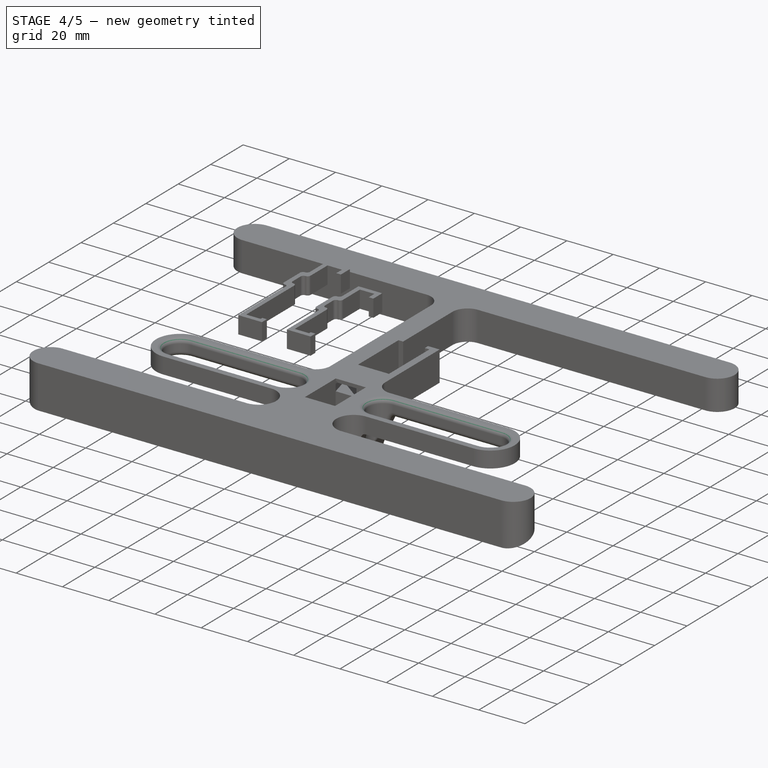
[diagram: stage 4 of 5 — iso view after this stage's code; geometry added in this stage tinted green]
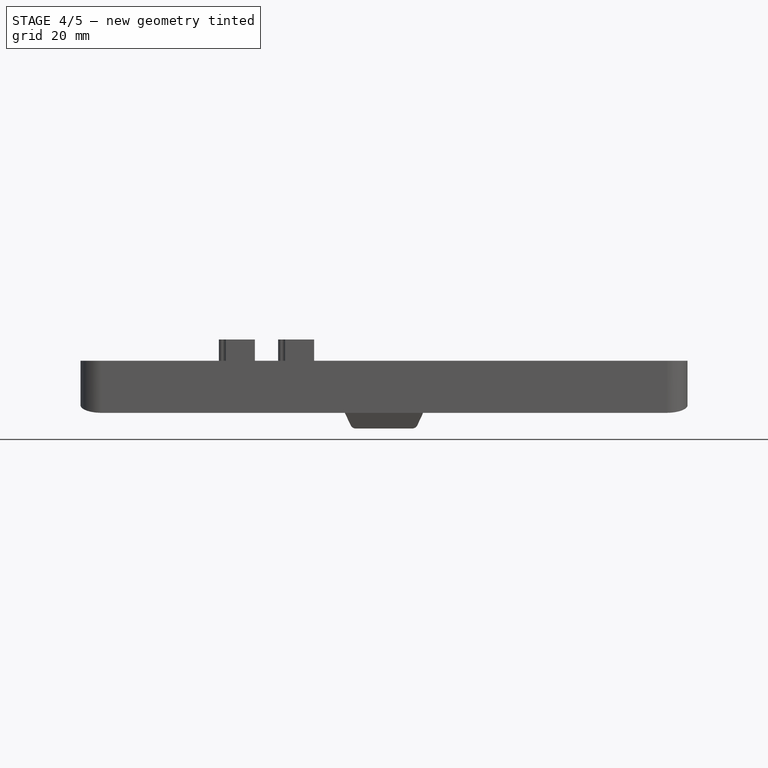
[diagram: stage 4 of 5 — front view after this stage's code; geometry added in this stage tinted green]
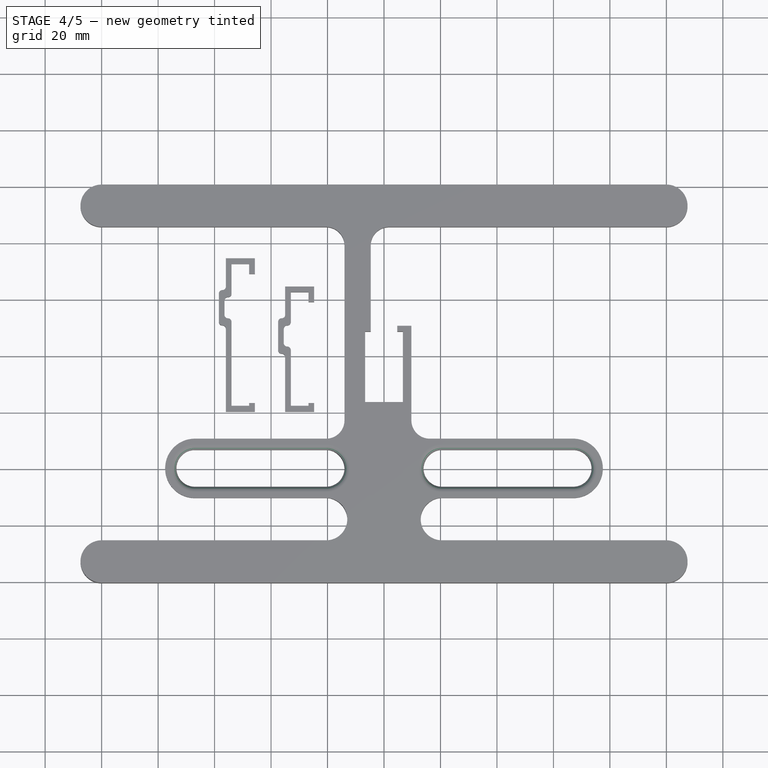
[diagram: stage 4 of 5 — top view after this stage's code; geometry added in this stage tinted green]
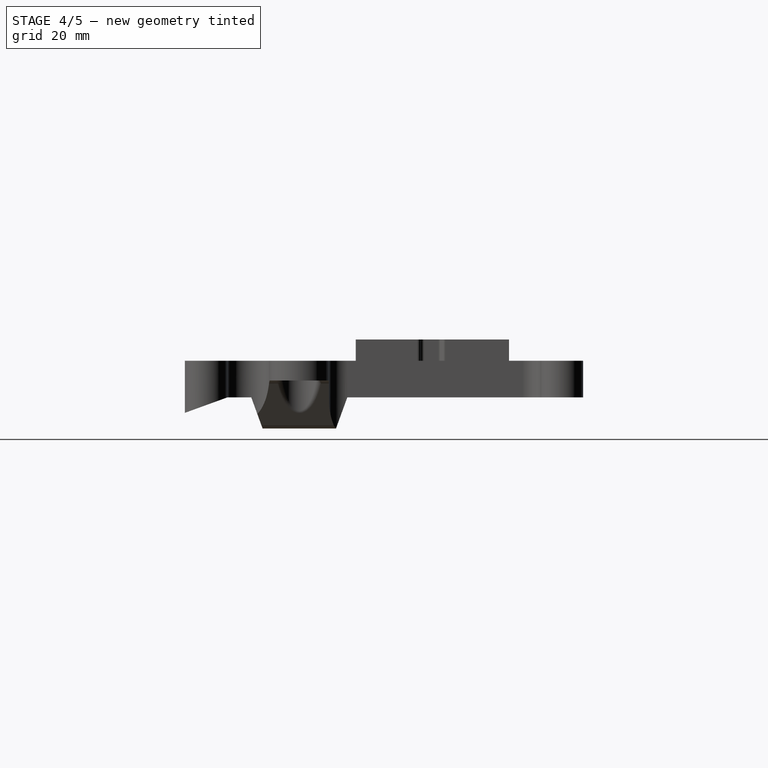
[diagram: stage 4 of 5 — right view after this stage's code; geometry added in this stage tinted green]
FEATURE [Part::Cut] Cut
  Base = -> Common
  Tool = -> Extrude004
FEATURE [Part::Cut] Cut001
  Base = -> Cut
  Tool = -> Extrude005
FEATURE [Part::Cut] Cut002
  Base = -> Cut001
  Tool = -> Extrude006
FEATURE [Part::Cut] Cut003
  Base = -> Cut002
  Tool = -> Fusion
FEATURE [Part::Cut] Cut004
  Base = -> Cut003
  Refine = true
  Tool = -> Extrude010
FEATURE [Part::Cut] Cut005
  Base = -> Cut004
  Refine = true
  Tool = -> Extrude011
FEATURE [Part::Cut] Cut006  label="MainBodyRaw001"
  Base = -> Cut005
  Refine = true
  Tool = -> Fusion004
FEATURE [Part::Fillet] Fillet  label="PrusaLightMain"
  Base = -> Cut006
  Edges = 20 edges r=2: [Edge19,Edge21,Edge60,Edge61,Edge62,Edge63,Edge64,Edge65,Edge66,Edge67,Edge83,Edge102,Edge106,Edge107,Edge108,Edge176,Edge178,Edge180,Edge181,Edge182]
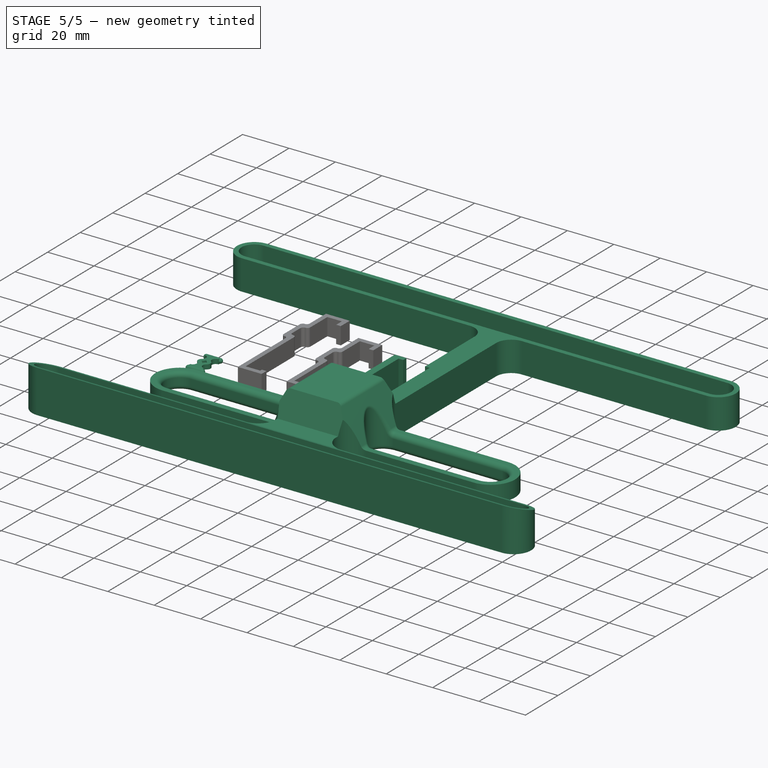
[diagram: stage 5 of 5 — iso view after this stage's code; geometry added in this stage tinted green]
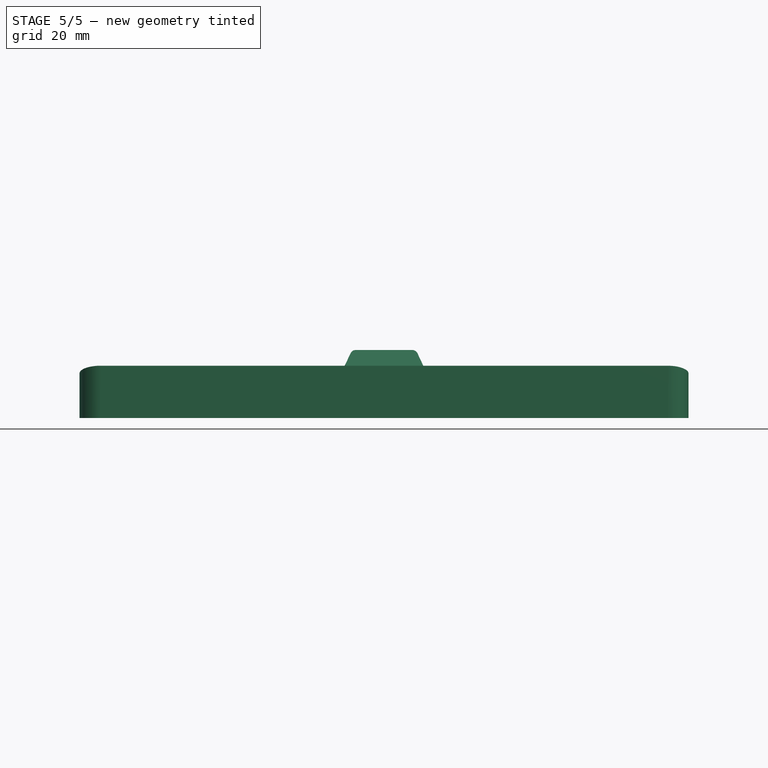
[diagram: stage 5 of 5 — front view after this stage's code; geometry added in this stage tinted green]
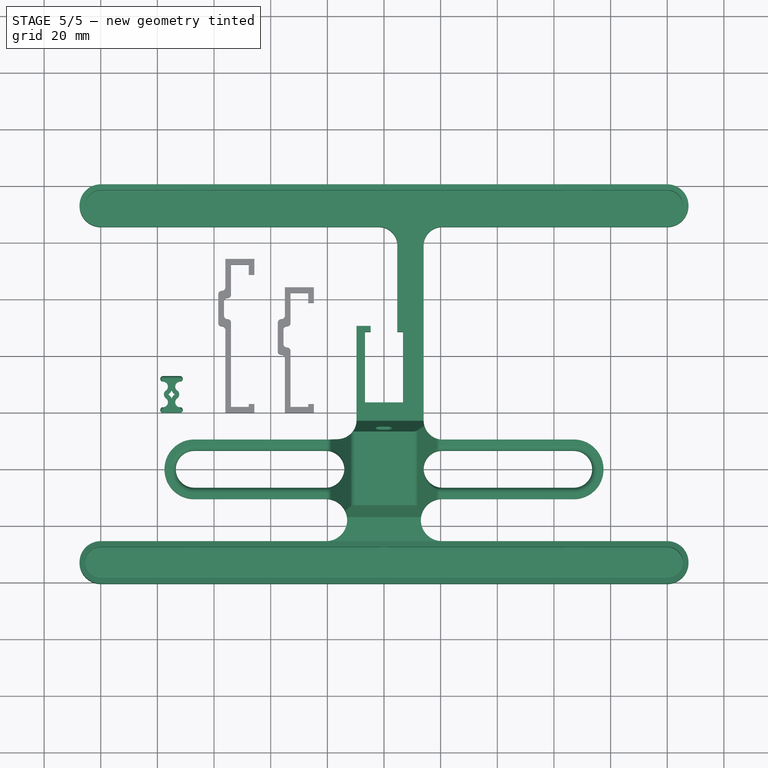
[diagram: stage 5 of 5 — top view after this stage's code; geometry added in this stage tinted green]
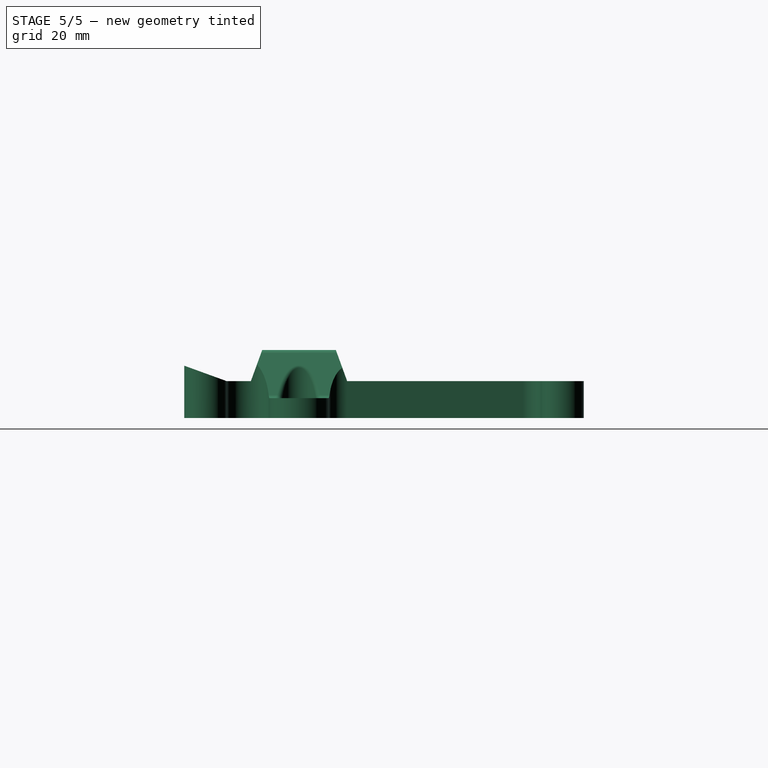
[diagram: stage 5 of 5 — right view after this stage's code; geometry added in this stage tinted green]
FEATURE [Part::Cylinder] Cylinder001
  Angle = 360
  AttacherType = Attacher::AttachEngine3D
  Height = 6
  Placement = pos=(0,0,-3) rot=(0,0,1;0rad)
  Radius = 1
FEATURE [Part::Sphere] Sphere002
  Angle1 = -90
  Angle2 = 90
  Angle3 = 360
  AttacherType = Attacher::AttachEngine3D
  Placement = pos=(0,0,3) rot=(0,0,1;0rad)
  Radius = 1
FEATURE [Part::Sphere] Sphere003
  Angle1 = -90
  Angle2 = 90
  Angle3 = 360
  AttacherType = Attacher::AttachEngine3D
  Placement = pos=(0,0,-3) rot=(0,0,1;0rad)
  Radius = 1
FEATURE [Part::MultiFuse] Fusion002  label="LockPinSide1"
  Placement = pos=(0,0,0) rot=(0,-1,0;1.5708rad)
  Shapes = -> [Cylinder001,Sphere002,Sphere003]
FEATURE [Part::FeaturePython] Clone004  label="LockPinSide002"  # Draft clone (typed FeaturePython)
  AttacherType = Attacher::AttachEngine3D
  Fuse = false
  Objects = -> [Fusion002]
  Placement = pos=(0,11,0) rot=(0,-1,0;1.5708rad)
  Scale = (1,1,1)
FEATURE [Sketcher::SketchObject] Sketch013
  MapMode = 5
  Support = -> [XY_Plane]
  sketch-geometry (18):
    g0: LineSegment StartX=-3 StartY=1 StartZ=0 EndX=-3 EndY=0 EndZ=0
    g1: LineSegment StartX=-3 StartY=0 StartZ=0 EndX=3 EndY=0 EndZ=0
    g2: LineSegment StartX=3 StartY=0 StartZ=0 EndX=3 EndY=1 EndZ=0
    g3: LineSegment StartX=-3 StartY=10 StartZ=0 EndX=-3 EndY=11 EndZ=0
    g4: LineSegment StartX=-3 StartY=11 StartZ=0 EndX=3 EndY=11 EndZ=0
    g5: LineSegment StartX=3 StartY=11 StartZ=0 EndX=3 EndY=10 EndZ=0
    g6: ArcOfCircle CenterX=-3 CenterY=8.28545 CenterZ=0 NormalX=0 NormalY=0 NormalZ=1 AngleXU=0 Radius=1.71455 StartAngle=5.3351 EndAngle=7.85398
    g7: ArcOfCircle CenterX=-1 CenterY=5.5 CenterZ=0 NormalX=0 NormalY=0 NormalZ=1 AngleXU=0 Radius=1.71455 StartAngle=2.19351 EndAngle=4.08967
    g8: ArcOfCircle CenterX=-3 CenterY=2.71455 CenterZ=0 NormalX=0 NormalY=0 NormalZ=1 AngleXU=0 Radius=1.71455 StartAngle=4.71239 EndAngle=7.23127
    g9: ArcOfCircle CenterX=-1 CenterY=5.5 CenterZ=0 NormalX=0 NormalY=0 NormalZ=1 AngleXU=0 Radius=0.121581 StartAngle=2.19351 EndAngle=4.08967
    g10: ArcOfCircle CenterX=-3 CenterY=8.28545 CenterZ=0 NormalX=0 NormalY=0 NormalZ=1 AngleXU=0 Radius=3.30752 StartAngle=5.3351 EndAngle=5.84855
    g11: ArcOfCircle CenterX=-3 CenterY=2.71455 CenterZ=0 NormalX=0 NormalY=0 NormalZ=1 AngleXU=0 Radius=3.30752 StartAngle=0.434634 EndAngle=0.948081
    g12: ArcOfCircle CenterX=3 CenterY=8.28545 CenterZ=0 NormalX=0 NormalY=0 NormalZ=1 AngleXU=0 Radius=1.71455 StartAngle=1.5708 EndAngle=4.08967
    g13: ArcOfCircle CenterX=3 CenterY=2.71455 CenterZ=0 NormalX=0 NormalY=0 NormalZ=1 AngleXU=0 Radius=1.71455 StartAngle=2.19351 EndAngle=4.71239
    g14: ArcOfCircle CenterX=1 CenterY=5.5 CenterZ=0 NormalX=0 NormalY=0 NormalZ=1 AngleXU=0 Radius=1.71455 StartAngle=5.3351 EndAngle=7.23127
    g15: ArcOfCircle CenterX=3 CenterY=8.28545 CenterZ=0 NormalX=0 NormalY=0 NormalZ=1 AngleXU=0 Radius=3.30752 StartAngle=3.57623 EndAngle=4.08967
    g16: ArcOfCircle CenterX=3 CenterY=2.71455 CenterZ=0 NormalX=0 NormalY=0 NormalZ=1 AngleXU=0 Radius=3.30752 StartAngle=2.19351 EndAngle=2.70696
    g17: ArcOfCircle CenterX=1 CenterY=5.5 CenterZ=0 NormalX=0 NormalY=0 NormalZ=1 AngleXU=0 Radius=0.121581 StartAngle=5.33513 EndAngle=7.23127
  constraints (51):
    c: DistanceX(g0,g-1) = 3
    c: Horizontal(g0,g-1)
    c: Symmetric(g0,g1,g-2)
    c: Vertical(g2)
    c: DistanceY(g2,g2) = 1
    c: Symmetric(g0,g2,g-2)
    c: Vertical(g3,g0)
    c: Vertical(g3)
    c: Vertical(g4,g2)
    c: Vertical(g5)
    c: Coincident(g3,g4)
    c: Coincident(g4,g5)
    c: Coincident(g0,g1)
    c: Coincident(g1,g2)
    c: DistanceY(g0,g3) = 11
    c: DistanceY(g3,g3) = 1
    c: Horizontal(g5,g3)
    c: Horizontal(g4)
    c: Coincident(g6,g3)
    c: Coincident(g8,g0)
    c: Vertical(g3,g6)
    c: Equal(g6,g7)
    c: Equal(g7,g8)
    c: Coincident(g9,g7)
    c: Coincident(g10,g6)
    c: Coincident(g11,g8)
    c: Coincident(g12,g5)
    c: Coincident(g13,g2)
    c: Horizontal(g13,g7)
    c: Coincident(g14,g12)
    c: Coincident(g15,g12)
    c: Coincident(g16,g13)
    c: Coincident(g17,g14)
    c: Coincident(g17,g15)
    c: Coincident(g17,g16)
    c: Tangent(g6,g7) = 1.5708
    c: Tangent(g7,g8) = 1.5708
    c: Tangent(g9,g11) = 1.5708
    c: Tangent(g9,g10) = 1.5708
    c: Vertical(g9,g9)
    c: DistanceX(g7,g-1) = 1
    c: Coincident(g10,g15)
    c: PointOnObject(g10,g-2)
    c: Coincident(g11,g16)
    c: Vertical(g11,g10)
    c: Horizontal(g10,g12)
    c: Horizontal(g9,g15)
    c: Horizontal(g12,g6)
    c: Symmetric(g14,g7,g-2)
    c: Tangent(g13,g14) = 1.5708
    c: Symmetric(g12,g6,g-2)
FEATURE [PartDesign::Body] Body
  Group = -> [Sketch,Sketch001,Sketch002,Sketch003,Sketch004,Sketch005,Sketch006,Sketch007,Sketch008,Sketch009,Sketch010,Sketch011,Sketch012,Sketch013]
  Origin = -> Origin
FEATURE [Part::Extrusion] Extrude012
  Base = -> Sketch013
  Dir = (0,0,1)
  DirMode = 2
  FaceMakerClass = Part::FaceMakerBullseye
  LengthFwd = 2
  LengthRev = 0
  Solid = true
  Symmetric = true
FEATURE [Part::MultiFuse] Fusion005  label="LockPin"
  Shapes = -> [Clone004,Fusion002,Extrude012]
FEATURE [Part::FeaturePython] Clone005  label="PrusaLightLockPin"  # Draft clone (typed FeaturePython)
  AttacherType = Attacher::AttachEngine3D
  Fuse = false
  Objects = -> [Fusion005]
  Placement = pos=(-75,21,1) rot=(0,0,1;0rad)
  Scale = (1,1,1)
FEATURE [Part::FeaturePython] Clone006  label="PrusaLightMainBody"  # Draft clone (typed FeaturePython)
  AttacherType = Attacher::AttachEngine3D
  Fuse = false
  Objects = -> [Fillet]
  Placement = pos=(0,0,0) rot=(0,1,0;3.14159rad)
  Scale = (1,1,1)
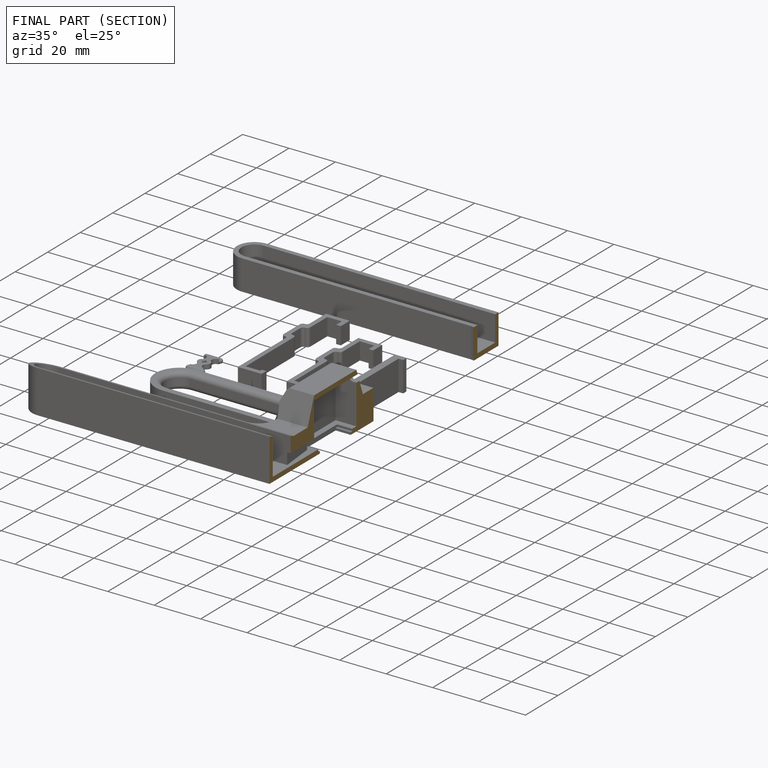
[diagram: finished part — half-section view (interior)]
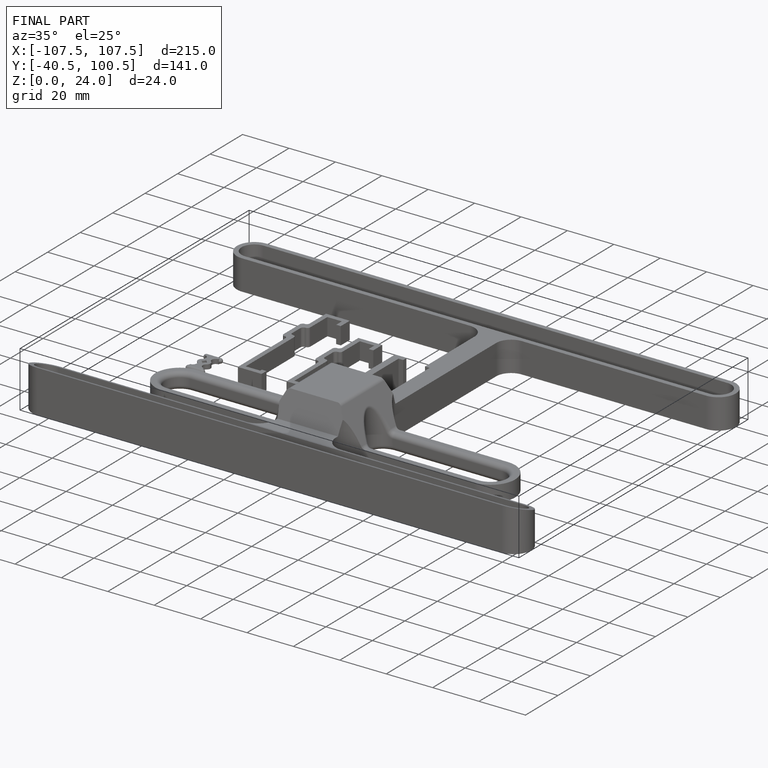
[diagram: finished part — iso view with bounding-box wireframe]
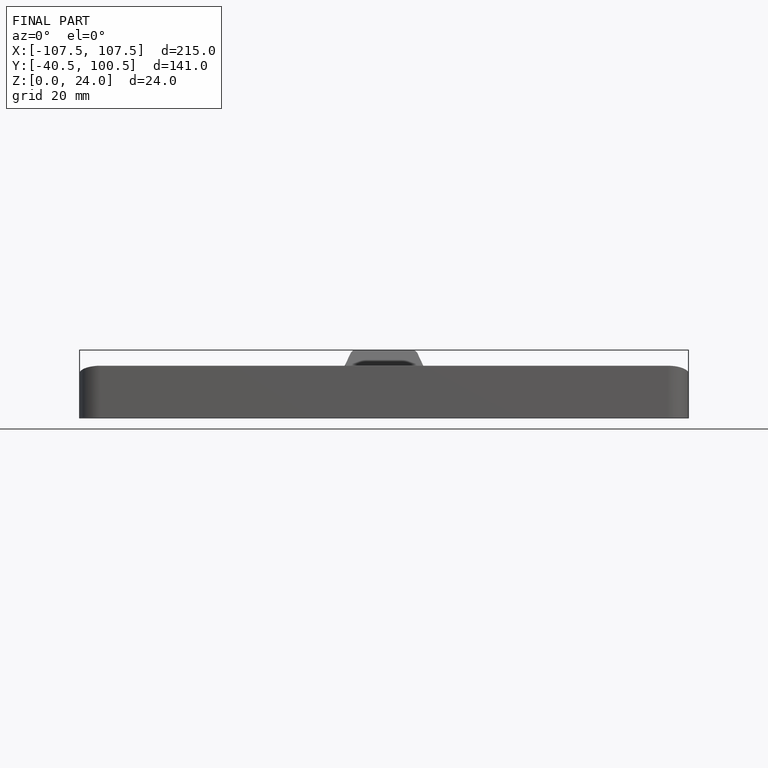
[diagram: finished part — front view with bounding-box wireframe]
